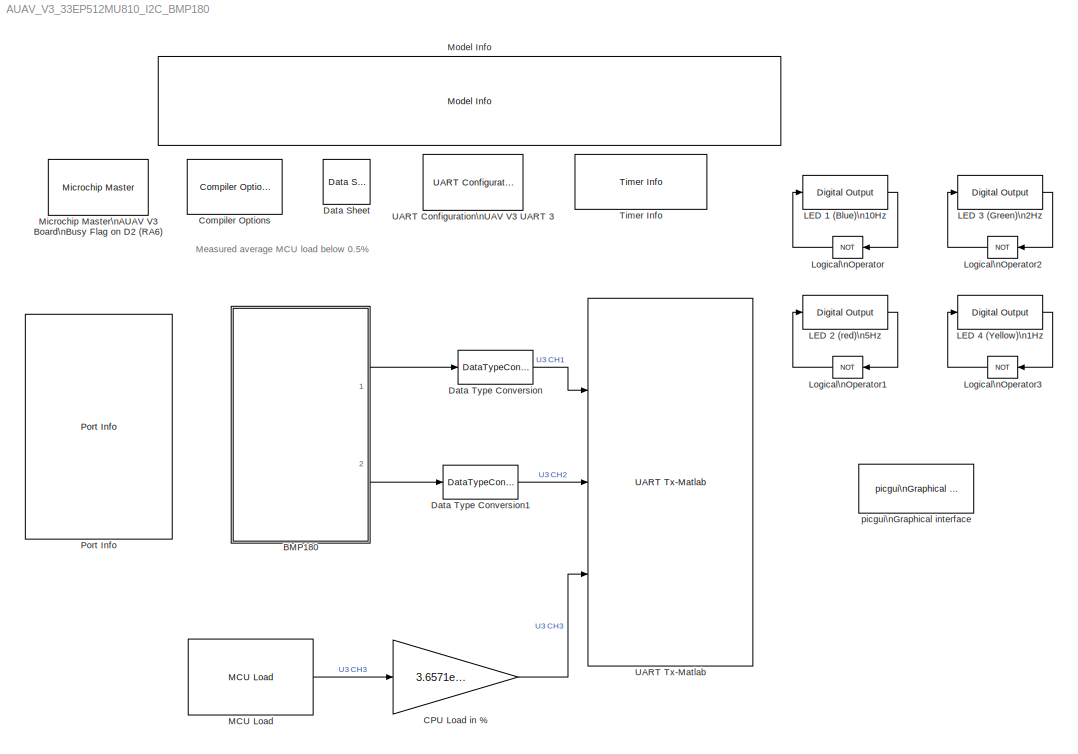
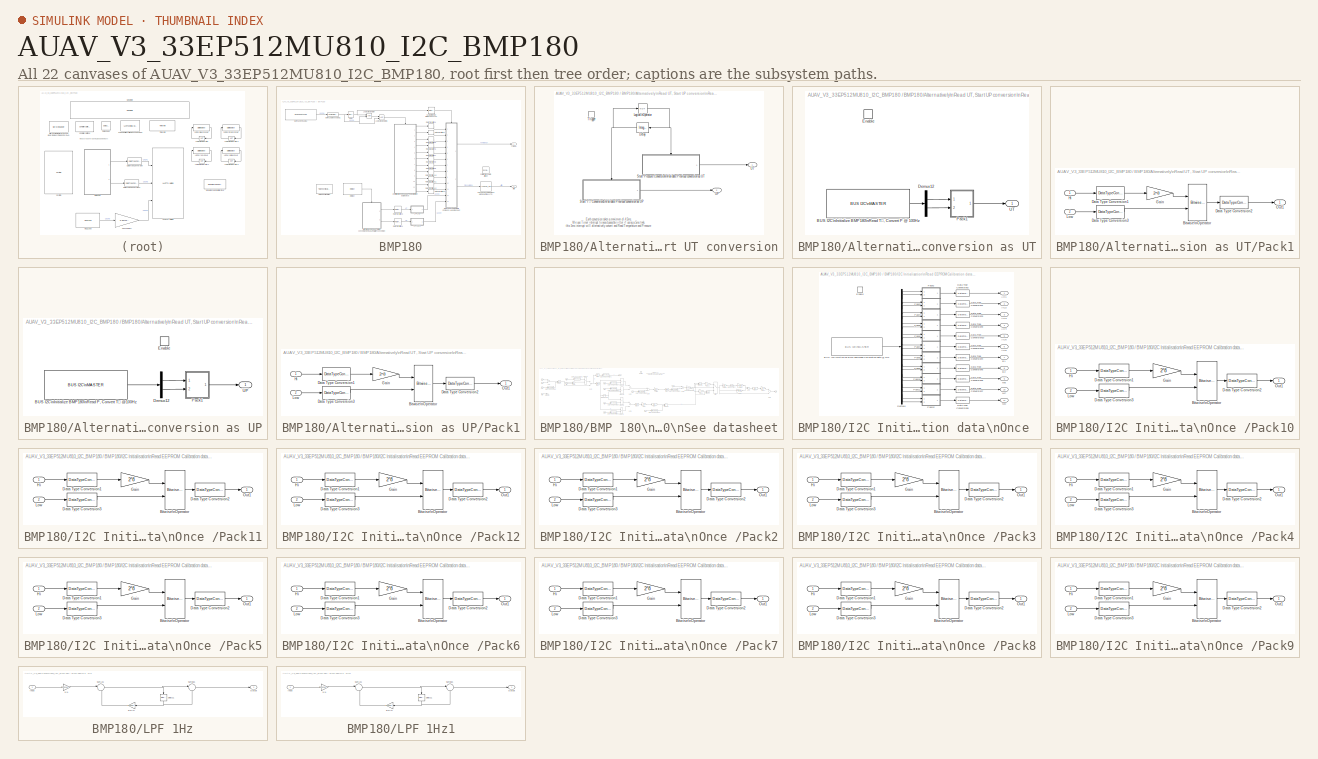
[diagram: thumbnail index - all 22 canvases of the model, root first then tree order]
MODEL AUAV_V3_33EP512MU810_I2C_BMP180
KIND model
BLOCK [SubSystem] BMP180
  FunctionWithSeparateData = off
  MaskHideContents = off
  MinAlgLoopOccurrences = off
  Opaque = off
  Ports = [0, 2]
  PropExecContextOutsideSubsystem = off
  RTWSystemCode = Auto
  RequestExecContextInheritance = off
  SID = 1430
BLOCK [Lookup_n-D] BMP180/1-D LookupTable\nPressure (Pa) to Altitude (m)\nValidate from 110776 to 35000 Pa \nequiv to -758m to 8117m
  BeginIndexSearchUsingPreviousIndexResult = on
  BreakpointsForDimension1 = [35000 37048 39096 41144 43192 45240 47288 49336 51384 53432 55480 57528 59576 61624 63672 65720 67768 69816 71864 73912 75960 78008 80056 82104 84152 86200 88248 90296 92344 94392 96440 98488 100536 102584 104632 106680 108728 110776]
  BreakpointsForDimension1DataTypeStr = int32
  ExtrapMethod = None - Clip
  FractionDataTypeStr = fixdt(1,16,14)
  IndexSearchMethod = Binary search
  IntermediateResultsDataTypeStr = fixdt(1,16,2)
  LockScale = on
  NumberOfTableDimensions = 1
  OutDataTypeStr = fixdt(1,16,2)
  Ports = [1, 1]
  RndMeth = Simplest
  SID = 1431
  Table = 1e3 * [ 8.117494150205507 7.723547426548278 7.346857777642530 6.985821956059110 6.639056725870316 6.305359823230530 5.983679274947499 5.673089005379611 5.372769238251574 5.081990599430406 4.800101108235001 4.526515446307385 4.260706039244585 4.002195593612567 3.750550811844361 3.505377067577800 3.266313869594596 3.033030977485221 2.805225059205164 2.582616801774246 2.364948402941722 2.151981384755...<+297ch>
  TableDataTypeStr = fixdt(1,16,2)
  UseLastTableValue = on
BLOCK [Outport] BMP180/Alt (m)
  IconDisplay = Port number
  Port = 2
  SID = 1695
BLOCK [SubSystem] BMP180/Alternatively\nRead UT, Start UP conversion\nRead UP, Start UT conversion
  FunctionWithSeparateData = off
  MaskHideContents = off
  MinAlgLoopOccurrences = off
  Opaque = off
  Ports = [0, 2, 0, 1]
  PropExecContextOutsideSubsystem = off
  RTWSystemCode = Auto
  RequestExecContextInheritance = off
  SID = 1432
BLOCK [Reference] BMP180/Alternatively\nRead UT, Start UP conversion\nRead UP, Start UT conversion/Delay  REF=simulink/Discrete/Integer Delay
  NumDelays = 1
  Ports = [1, 1]
  SID = 1434
  SourceBlock = simulink/Discrete/Integer Delay
  SourceType = Integer Delay
  samptime = -1
  vinit = 0
BLOCK [Logic] BMP180/Alternatively\nRead UT, Start UP conversion\nRead UP, Start UT conversion/Logical\nOperator
  AllPortsSameDT = off
  Operator = NOT
  OutDataTypeMode = boolean
  OutDataTypeStr = boolean
  Ports = [1, 1]
  SID = 1435
BLOCK [SubSystem] BMP180/Alternatively\nRead UT, Start UP conversion\nRead UP, Start UT conversion/Start Pressure Conversion\nValidate Previous conversion as UT
  FunctionWithSeparateData = off
  MaskHideContents = off
  MinAlgLoopOccurrences = off
  Opaque = off
  Ports = [0, 1, 1]
  PropExecContextOutsideSubsystem = off
  RTWSystemCode = Auto
  RequestExecContextInheritance = off
  SID = 1436
BLOCK [Reference] BMP180/Alternatively\nRead UT, Start UP conversion\nRead UP, Start UT conversion/Start Pressure Conversion\nValidate Previous conversion as UT/BUS I2C\nInitialize BMP180\nRead T°, Convert P @ 100Hz  REF=MCHP_Blockset/BUS I2C/BUS I2C\nMASTER
  BlockingMode = off
  I2CRef = 2
  I2C_IntPriority = 5
  I2Csequence_num = [BFF0000000000000 40E0400000000000 41186A0000000000 4118666E3C87173F]$4070000000000000$[3FF0000000000000 40E0200000000000 40F86A0000000000 40F866E066594CA2]$[4040000000000000 0000000000000000 0000000000000000 405DC00000000000]$[4050000000000000 3FF0000000000000 0000000000000000 406EC00000000000]$[4008000000000000 40E0000000000000 40F86A0000000000 410065D9C7810E65]$[4060000000000000 400000000000000...<+369ch>
  I2Csequence_txt = Initial-Configuration$     ---     $Start$Write Address:{[0x77]}    % BMP180 Address$Write Data (x1)  Write:{[0xF6]}  $Re-Start    % Re-Start when not followed with either Read or Write action rethrow Address$Read Data (x2)  Read:{adc out}    % Read converted value$Stop$Start$Write Address:{[0x77]}    % BMP180 Address$Write Data (x1)  Write:{[0xF4 0x34]}      % Start T° Conversion$Stop
  InitialConfigurationNum = 0
  MCHP_MASTERLINK = AUAV_V3_33EP512MU810_I2C_BMP180/Microchip Master\nAUAV V3 Board\nBusy Flag on D2 (RA6)
  MCHP_PORT = {I2C 2 Clock}{SCL2}13:0:F5;{I2C 2 SDA}{SDA2}13:0:F4;
  ORDERING = 0
  PIN_SCL_TXT = F5 / Pin[32]
  PIN_SDA_TXT = F4 / Pin[31]
  Ports = [0, 1]
  SID = 1438
  S_INPUT = [5  5]
  S_INPUT_Size = [2  2]
  S_OUTPUT = [5]
  S_OUTPUT_Size = [4]
  SampleTime = -1
  SequenceCompleted = off
  SourceBlock = MCHP_Blockset/BUS I2C/BUS I2C\nMASTER
  SourceType = I2C Driver
BLOCK [Demux] BMP180/Alternatively\nRead UT, Start UP conversion\nRead UP, Start UT conversion/Start Pressure Conversion\nValidate Previous conversion as UT/Demux12
  DisplayOption = bar
  Outputs = 2
  Ports = [1, 2]
  SID = 1439
BLOCK [EnablePort] BMP180/Alternatively\nRead UT, Start UP conversion\nRead UP, Start UT conversion/Start Pressure Conversion\nValidate Previous conversion as UT/Enable
  Ports = []
  SID = 1437
BLOCK [SubSystem] BMP180/Alternatively\nRead UT, Start UP conversion\nRead UP, Start UT conversion/Start Pressure Conversion\nValidate Previous conversion as UT/Pack1
  FunctionWithSeparateData = off
  MaskHideContents = off
  MinAlgLoopOccurrences = off
  Opaque = off
  Ports = [2, 1]
  PropExecContextOutsideSubsystem = off
  RTWSystemCode = Auto
  RequestExecContextInheritance = off
  SID = 1440
BLOCK [Reference] BMP180/Alternatively\nRead UT, Start UP conversion\nRead UP, Start UT conversion/Start Pressure Conversion\nValidate Previous conversion as UT/Pack1/Bitwise\nOperator  REF=simulink/Logic and Bit\nOperations/Bitwise\nOperator
  BitMask = bin2dec('11011001')
  BitMaskRealWorld = Stored Integer
  NumInputPorts = 2
  Ports = [2, 1]
  SID = 1443
  SourceBlock = simulink/Logic and Bit\nOperations/Bitwise\nOperator
  SourceType = Bitwise Operator
  UseBitMask = off
  logicop = OR
BLOCK [DataTypeConversion] BMP180/Alternatively\nRead UT, Start UP conversion\nRead UP, Start UT conversion/Start Pressure Conversion\nValidate Previous conversion as UT/Pack1/Data Type Conversion1
  ConvertRealWorld = Stored Integer (SI)
  OutDataTypeMode = uint16
  OutDataTypeStr = uint16
  RndMeth = Floor
  SID = 1444
  SaturateOnIntegerOverflow = off
BLOCK [DataTypeConversion] BMP180/Alternatively\nRead UT, Start UP conversion\nRead UP, Start UT conversion/Start Pressure Conversion\nValidate Previous conversion as UT/Pack1/Data Type Conversion2
  ConvertRealWorld = Stored Integer (SI)
  OutDataTypeMode = uint16
  OutDataTypeStr = uint16
  RndMeth = Floor
  SID = 1445
  SaturateOnIntegerOverflow = off
BLOCK [DataTypeConversion] BMP180/Alternatively\nRead UT, Start UP conversion\nRead UP, Start UT conversion/Start Pressure Conversion\nValidate Previous conversion as UT/Pack1/Data Type Conversion3
  ConvertRealWorld = Stored Integer (SI)
  OutDataTypeMode = uint16
  OutDataTypeStr = uint16
  RndMeth = Floor
  SID = 1446
  SaturateOnIntegerOverflow = off
BLOCK [Gain] BMP180/Alternatively\nRead UT, Start UP conversion\nRead UP, Start UT conversion/Start Pressure Conversion\nValidate Previous conversion as UT/Pack1/Gain
  Gain = 2^8
  ParamDataTypeStr = Inherit: Inherit via internal rule
  ParameterDataTypeMode = Inherit via internal rule
  SID = 1447
  SaturateOnIntegerOverflow = off
BLOCK [Inport] BMP180/Alternatively\nRead UT, Start UP conversion\nRead UP, Start UT conversion/Start Pressure Conversion\nValidate Previous conversion as UT/Pack1/Hi
  IconDisplay = Port number
  SID = 1441
BLOCK [Inport] BMP180/Alternatively\nRead UT, Start UP conversion\nRead UP, Start UT conversion/Start Pressure Conversion\nValidate Previous conversion as UT/Pack1/Low
  IconDisplay = Port number
  Port = 2
  SID = 1442
BLOCK [Outport] BMP180/Alternatively\nRead UT, Start UP conversion\nRead UP, Start UT conversion/Start Pressure Conversion\nValidate Previous conversion as UT/Pack1/Out1
  IconDisplay = Port number
  SID = 1448
BLOCK [Outport] BMP180/Alternatively\nRead UT, Start UP conversion\nRead UP, Start UT conversion/Start Pressure Conversion\nValidate Previous conversion as UT/UT
  IconDisplay = Port number
  SID = 1449
BLOCK [SubSystem] BMP180/Alternatively\nRead UT, Start UP conversion\nRead UP, Start UT conversion/Start T° Conversion1\nValidate Previous conversion as UP
  FunctionWithSeparateData = off
  MaskHideContents = off
  MinAlgLoopOccurrences = off
  Opaque = off
  Ports = [0, 1, 1]
  PropExecContextOutsideSubsystem = off
  RTWSystemCode = Auto
  RequestExecContextInheritance = off
  SID = 1450
BLOCK [Reference] BMP180/Alternatively\nRead UT, Start UP conversion\nRead UP, Start UT conversion/Start T° Conversion1\nValidate Previous conversion as UP/BUS I2C\nInitialize BMP180\nRead P, Convert T° @100Hz  REF=MCHP_Blockset/BUS I2C/BUS I2C\nMASTER
  BlockingMode = off
  I2CRef = 2
  I2C_IntPriority = 5
  I2Csequence_num = [BFF0000000000000 40E0400000000000 41186A0000000000 4118666E3C87173F]$4070000000000000$[3FF0000000000000 40E0200000000000 40F86A0000000000 40F866E066594CA2]$[4040000000000000 0000000000000000 0000000000000000 405DC00000000000]$[4050000000000000 3FF0000000000000 0000000000000000 406EC00000000000]$[4008000000000000 40E0000000000000 40F86A0000000000 410065D9C7810E65]$[4060000000000000 400000000000000...<+369ch>
  I2Csequence_txt = Initial-Configuration$     ---     $Start$Write Address:{[0x77]}    % BMP180 Address$Write Data (x1)  Write:{[0xF6]}  $Re-Start    % Re-Start when not followed with either Read or Write action rethrow Address$Read Data (x2)  Read:{adc out}    % Read converted value$Stop$Start$Write Address:{[0x77]}    % BMP180 Address$Write Data (x1)  Write:{[0xF4 0x2E]}      % Start T° Conversion$Stop
  InitialConfigurationNum = 0
  MCHP_MASTERLINK = AUAV_V3_33EP512MU810_I2C_BMP180/Microchip Master\nAUAV V3 Board\nBusy Flag on D2 (RA6)
  MCHP_PORT = {I2C 2 Clock}{SCL2}13:0:F5;{I2C 2 SDA}{SDA2}13:0:F4;
  ORDERING = 0
  PIN_SCL_TXT = F5 / Pin[32]
  PIN_SDA_TXT = F4 / Pin[31]
  Ports = [0, 1]
  SID = 1452
  S_INPUT = [5  5]
  S_INPUT_Size = [2  2]
  S_OUTPUT = [5]
  S_OUTPUT_Size = [4]
  SampleTime = -1
  SequenceCompleted = off
  SourceBlock = MCHP_Blockset/BUS I2C/BUS I2C\nMASTER
  SourceType = I2C Driver
BLOCK [Demux] BMP180/Alternatively\nRead UT, Start UP conversion\nRead UP, Start UT conversion/Start T° Conversion1\nValidate Previous conversion as UP/Demux12
  DisplayOption = bar
  Outputs = 2
  Ports = [1, 2]
  SID = 1453
BLOCK [EnablePort] BMP180/Alternatively\nRead UT, Start UP conversion\nRead UP, Start UT conversion/Start T° Conversion1\nValidate Previous conversion as UP/Enable
  Ports = []
  SID = 1451
BLOCK [SubSystem] BMP180/Alternatively\nRead UT, Start UP conversion\nRead UP, Start UT conversion/Start T° Conversion1\nValidate Previous conversion as UP/Pack1
  FunctionWithSeparateData = off
  MaskHideContents = off
  MinAlgLoopOccurrences = off
  Opaque = off
  Ports = [2, 1]
  PropExecContextOutsideSubsystem = off
  RTWSystemCode = Auto
  RequestExecContextInheritance = off
  SID = 1454
BLOCK [Reference] BMP180/Alternatively\nRead UT, Start UP conversion\nRead UP, Start UT conversion/Start T° Conversion1\nValidate Previous conversion as UP/Pack1/Bitwise\nOperator  REF=simulink/Logic and Bit\nOperations/Bitwise\nOperator
  BitMask = bin2dec('11011001')
  BitMaskRealWorld = Stored Integer
  NumInputPorts = 2
  Ports = [2, 1]
  SID = 1457
  SourceBlock = simulink/Logic and Bit\nOperations/Bitwise\nOperator
  SourceType = Bitwise Operator
  UseBitMask = off
  logicop = OR
BLOCK [DataTypeConversion] BMP180/Alternatively\nRead UT, Start UP conversion\nRead UP, Start UT conversion/Start T° Conversion1\nValidate Previous conversion as UP/Pack1/Data Type Conversion1
  ConvertRealWorld = Stored Integer (SI)
  OutDataTypeMode = uint16
  OutDataTypeStr = uint16
  RndMeth = Floor
  SID = 1458
  SaturateOnIntegerOverflow = off
BLOCK [DataTypeConversion] BMP180/Alternatively\nRead UT, Start UP conversion\nRead UP, Start UT conversion/Start T° Conversion1\nValidate Previous conversion as UP/Pack1/Data Type Conversion2
  ConvertRealWorld = Stored Integer (SI)
  OutDataTypeMode = uint16
  OutDataTypeStr = uint16
  RndMeth = Floor
  SID = 1459
  SaturateOnIntegerOverflow = off
BLOCK [DataTypeConversion] BMP180/Alternatively\nRead UT, Start UP conversion\nRead UP, Start UT conversion/Start T° Conversion1\nValidate Previous conversion as UP/Pack1/Data Type Conversion3
  ConvertRealWorld = Stored Integer (SI)
  OutDataTypeMode = uint16
  OutDataTypeStr = uint16
  RndMeth = Floor
  SID = 1460
  SaturateOnIntegerOverflow = off
BLOCK [Gain] BMP180/Alternatively\nRead UT, Start UP conversion\nRead UP, Start UT conversion/Start T° Conversion1\nValidate Previous conversion as UP/Pack1/Gain
  Gain = 2^8
  ParamDataTypeStr = Inherit: Inherit via internal rule
  ParameterDataTypeMode = Inherit via internal rule
  SID = 1461
  SaturateOnIntegerOverflow = off
BLOCK [Inport] BMP180/Alternatively\nRead UT, Start UP conversion\nRead UP, Start UT conversion/Start T° Conversion1\nValidate Previous conversion as UP/Pack1/Hi
  IconDisplay = Port number
  SID = 1455
BLOCK [Inport] BMP180/Alternatively\nRead UT, Start UP conversion\nRead UP, Start UT conversion/Start T° Conversion1\nValidate Previous conversion as UP/Pack1/Low
  IconDisplay = Port number
  Port = 2
  SID = 1456
BLOCK [Outport] BMP180/Alternatively\nRead UT, Start UP conversion\nRead UP, Start UT conversion/Start T° Conversion1\nValidate Previous conversion as UP/Pack1/Out1
  IconDisplay = Port number
  SID = 1462
BLOCK [Outport] BMP180/Alternatively\nRead UT, Start UP conversion\nRead UP, Start UT conversion/Start T° Conversion1\nValidate Previous conversion as UP/UP
  IconDisplay = Port number
  SID = 1463
BLOCK [TriggerPort] BMP180/Alternatively\nRead UT, Start UP conversion\nRead UP, Start UT conversion/Trigger
  PortDimensions = 1
  Ports = []
  SID = 1433
  StatesWhenEnabling = held
  TriggerType = function-call
BLOCK [Outport] BMP180/Alternatively\nRead UT, Start UP conversion\nRead UP, Start UT conversion/UP
  IconDisplay = Port number
  Port = 2
  SID = 1465
BLOCK [Outport] BMP180/Alternatively\nRead UT, Start UP conversion\nRead UP, Start UT conversion/UT
  IconDisplay = Port number
  SID = 1464
BLOCK [Reference] BMP180/BMP 180 ID\n0x55 (85)1  REF=simulink/Logic and Bit\nOperations/Compare\nTo Constant
  FunctionWithSeparateData = off
  LogicOutDataTypeMode = boolean
  Ports = [1, 1]
  RTWMemSecDataConstants = Inherit from model
  RTWMemSecDataInternal = Inherit from model
  RTWMemSecDataParameters = Inherit from model
  RTWMemSecFuncExecute = Inherit from model
  RTWMemSecFuncInitTerm = Inherit from model
  SID = 1530
  ShowPortLabels = FromPortIcon
  SourceBlock = simulink/Logic and Bit\nOperations/Compare\nTo Constant
  SourceType = Compare To Constant
  SystemSampleTime = -1
  ZeroCross = on
  const = hex2dec('55')
  relop = ==
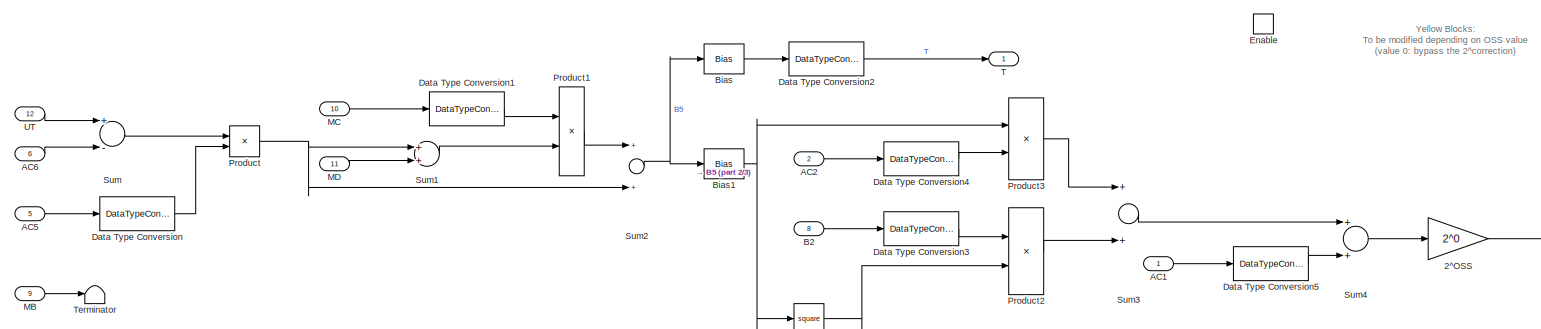
[diagram: BMP180/BMP 180\nTemperature Compensation\nOSS must be 0\nSee datasheet - part 1/3, top left region]
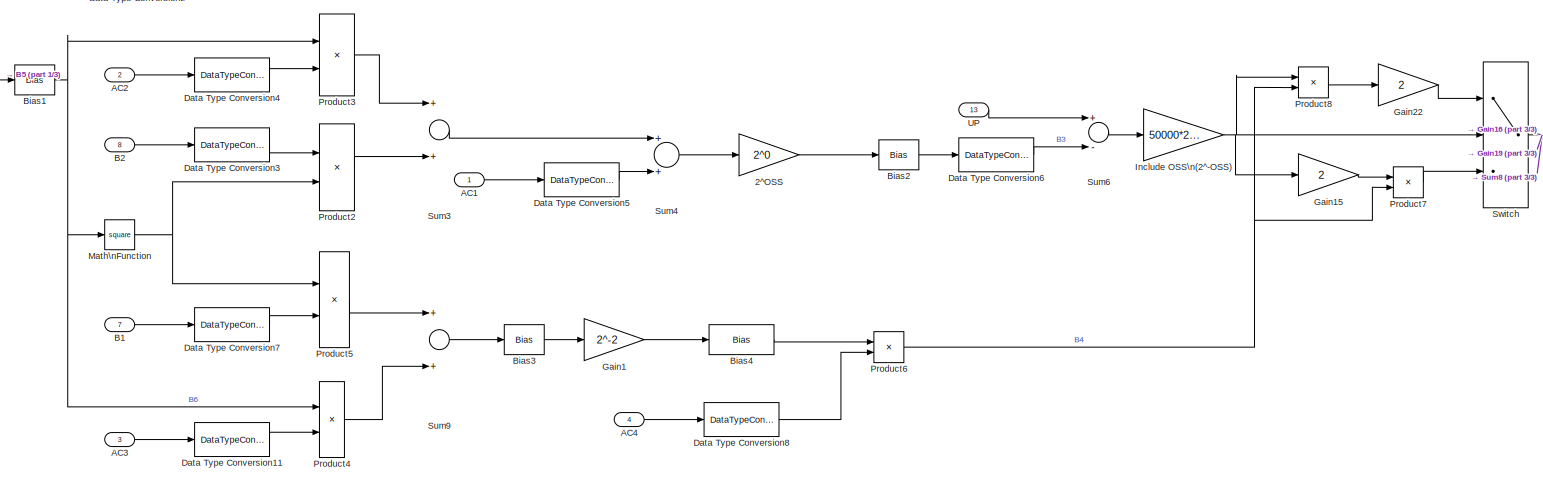
[diagram: BMP180/BMP 180\nTemperature Compensation\nOSS must be 0\nSee datasheet - part 2/3, center side, full height]
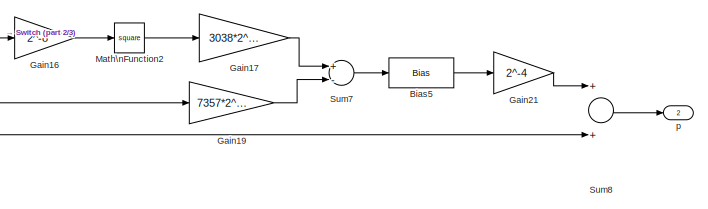
[diagram: BMP180/BMP 180\nTemperature Compensation\nOSS must be 0\nSee datasheet - part 3/3, middle right region]
BLOCK [SubSystem] BMP180/BMP 180\nTemperature Compensation\nOSS must be 0\nSee datasheet
  FunctionWithSeparateData = off
  MaskHideContents = off
  MinAlgLoopOccurrences = off
  Opaque = off
  Ports = [13, 2, 1]
  PropExecContextOutsideSubsystem = off
  RTWSystemCode = Auto
  RequestExecContextInheritance = off
  SID = 1466
BLOCK [Gain] BMP180/BMP 180\nTemperature Compensation\nOSS must be 0\nSee datasheet/2^OSS
  Gain = 2^0
  LockScale = on
  ParamDataTypeStr = Inherit: Inherit via internal rule
  ParameterDataTypeMode = Inherit via internal rule
  SID = 1481
  SaturateOnIntegerOverflow = off
BLOCK [Inport] BMP180/BMP 180\nTemperature Compensation\nOSS must be 0\nSee datasheet/AC1
  IconDisplay = Port number
  SID = 1467
BLOCK [Inport] BMP180/BMP 180\nTemperature Compensation\nOSS must be 0\nSee datasheet/AC2
  IconDisplay = Port number
  Port = 2
  SID = 1468
BLOCK [Inport] BMP180/BMP 180\nTemperature Compensation\nOSS must be 0\nSee datasheet/AC3
  IconDisplay = Port number
  Port = 3
  SID = 1469
BLOCK [Inport] BMP180/BMP 180\nTemperature Compensation\nOSS must be 0\nSee datasheet/AC4
  IconDisplay = Port number
  Port = 4
  SID = 1470
BLOCK [Inport] BMP180/BMP 180\nTemperature Compensation\nOSS must be 0\nSee datasheet/AC5
  IconDisplay = Port number
  Port = 5
  SID = 1471
BLOCK [Inport] BMP180/BMP 180\nTemperature Compensation\nOSS must be 0\nSee datasheet/AC6
  IconDisplay = Port number
  Port = 6
  SID = 1472
BLOCK [Inport] BMP180/BMP 180\nTemperature Compensation\nOSS must be 0\nSee datasheet/B1
  IconDisplay = Port number
  Port = 7
  SID = 1473
BLOCK [Inport] BMP180/BMP 180\nTemperature Compensation\nOSS must be 0\nSee datasheet/B2
  IconDisplay = Port number
  Port = 8
  SID = 1474
BLOCK [Bias] BMP180/BMP 180\nTemperature Compensation\nOSS must be 0\nSee datasheet/Bias
  Bias = 8
  SID = 1482
  SaturateOnIntegerOverflow = off
BLOCK [Bias] BMP180/BMP 180\nTemperature Compensation\nOSS must be 0\nSee datasheet/Bias1
  Bias = -4000
  SID = 1483
  SaturateOnIntegerOverflow = off
BLOCK [Bias] BMP180/BMP 180\nTemperature Compensation\nOSS must be 0\nSee datasheet/Bias2
  Bias = 2
  SID = 1484
  SaturateOnIntegerOverflow = off
BLOCK [Bias] BMP180/BMP 180\nTemperature Compensation\nOSS must be 0\nSee datasheet/Bias3
  Bias = 2
  SID = 1485
  SaturateOnIntegerOverflow = off
BLOCK [Bias] BMP180/BMP 180\nTemperature Compensation\nOSS must be 0\nSee datasheet/Bias4
  Bias = 32768
  SID = 1486
  SaturateOnIntegerOverflow = off
BLOCK [Bias] BMP180/BMP 180\nTemperature Compensation\nOSS must be 0\nSee datasheet/Bias5
  Bias = 3791
  SID = 1487
  SaturateOnIntegerOverflow = off
BLOCK [DataTypeConversion] BMP180/BMP 180\nTemperature Compensation\nOSS must be 0\nSee datasheet/Data Type Conversion
  ConvertRealWorld = Stored Integer (SI)
  OutDataType = fixdt(0,16,15)
  OutDataTypeMode = Specify via dialog
  OutDataTypeStr = fixdt(0,16,15)
  RndMeth = Floor
  SID = 1488
  SaturateOnIntegerOverflow = off
BLOCK [DataTypeConversion] BMP180/BMP 180\nTemperature Compensation\nOSS must be 0\nSee datasheet/Data Type Conversion1
  ConvertRealWorld = Stored Integer (SI)
  OutDataType = fixdt(1,16,-11)
  OutDataTypeMode = Specify via dialog
  OutDataTypeStr = fixdt(1,16,-11)
  RndMeth = Floor
  SID = 1489
  SaturateOnIntegerOverflow = off
BLOCK [DataTypeConversion] BMP180/BMP 180\nTemperature Compensation\nOSS must be 0\nSee datasheet/Data Type Conversion11
  ConvertRealWorld = Stored Integer (SI)
  OutDataType = fixdt(1,16,13)
  OutDataTypeMode = Specify via dialog
  OutDataTypeStr = fixdt(1,16,13)
  RndMeth = Floor
  SID = 1490
  SaturateOnIntegerOverflow = off
BLOCK [DataTypeConversion] BMP180/BMP 180\nTemperature Compensation\nOSS must be 0\nSee datasheet/Data Type Conversion2
  ConvertRealWorld = Stored Integer (SI)
  OutDataType = fixdt(1,16,0.1*2^-4,0)
  OutDataTypeMode = Specify via dialog
  OutDataTypeStr = fixdt(1,16,0.1*2^-4,0)
  RndMeth = Floor
  SID = 1491
  SaturateOnIntegerOverflow = off
BLOCK [DataTypeConversion] BMP180/BMP 180\nTemperature Compensation\nOSS must be 0\nSee datasheet/Data Type Conversion3
  ConvertRealWorld = Stored Integer (SI)
  OutDataType = fixdt(1,16,23)
  OutDataTypeMode = Specify via dialog
  OutDataTypeStr = fixdt(1,16,23)
  RndMeth = Floor
  SID = 1492
  SaturateOnIntegerOverflow = off
BLOCK [DataTypeConversion] BMP180/BMP 180\nTemperature Compensation\nOSS must be 0\nSee datasheet/Data Type Conversion4
  ConvertRealWorld = Stored Integer (SI)
  OutDataType = fixdt(1,16,11)
  OutDataTypeMode = Specify via dialog
  OutDataTypeStr = fixdt(1,16,11)
  RndMeth = Floor
  SID = 1493
  SaturateOnIntegerOverflow = off
BLOCK [DataTypeConversion] BMP180/BMP 180\nTemperature Compensation\nOSS must be 0\nSee datasheet/Data Type Conversion5
  ConvertRealWorld = Stored Integer (SI)
  OutDataType = fixdt(1,16,-2)
  OutDataTypeMode = Specify via dialog
  OutDataTypeStr = fixdt(1,16,-2)
  RndMeth = Floor
  SID = 1494
  SaturateOnIntegerOverflow = off
BLOCK [DataTypeConversion] BMP180/BMP 180\nTemperature Compensation\nOSS must be 0\nSee datasheet/Data Type Conversion6
  ConvertRealWorld = Stored Integer (SI)
  OutDataType = fixdt(1,32,2)
  OutDataTypeMode = Specify via dialog
  OutDataTypeStr = fixdt(1,32,2)
  RndMeth = Floor
  SID = 1495
  SaturateOnIntegerOverflow = off
BLOCK [DataTypeConversion] BMP180/BMP 180\nTemperature Compensation\nOSS must be 0\nSee datasheet/Data Type Conversion7
  ConvertRealWorld = Stored Integer (SI)
  OutDataType = fixdt(1,16,12+16)
  OutDataTypeMode = Specify via dialog
  OutDataTypeStr = fixdt(1,16,12+16)
  RndMeth = Floor
  SID = 1496
  SaturateOnIntegerOverflow = off
BLOCK [DataTypeConversion] BMP180/BMP 180\nTemperature Compensation\nOSS must be 0\nSee datasheet/Data Type Conversion8
  ConvertRealWorld = Stored Integer (SI)
  OutDataType = fixdt(0,16,15)
  OutDataTypeMode = Specify via dialog
  OutDataTypeStr = fixdt(0,16,15)
  RndMeth = Floor
  SID = 1497
  SaturateOnIntegerOverflow = off
BLOCK [EnablePort] BMP180/BMP 180\nTemperature Compensation\nOSS must be 0\nSee datasheet/Enable
  Ports = []
  SID = 1480
BLOCK [Gain] BMP180/BMP 180\nTemperature Compensation\nOSS must be 0\nSee datasheet/Gain1
  Gain = 2^-2
  OutDataTypeMode = int32
  OutDataTypeStr = int32
  ParamDataTypeStr = Inherit: Inherit via internal rule
  ParameterDataTypeMode = Inherit via internal rule
  SID = 1498
  SaturateOnIntegerOverflow = off
BLOCK [Gain] BMP180/BMP 180\nTemperature Compensation\nOSS must be 0\nSee datasheet/Gain15
  Gain = 2
  OutDataTypeMode = uint32
  OutDataTypeStr = uint32
  ParamDataTypeStr = Inherit: Inherit via internal rule
  ParameterDataTypeMode = Inherit via internal rule
  RndMeth = Round
  SID = 1499
  SaturateOnIntegerOverflow = off
BLOCK [Gain] BMP180/BMP 180\nTemperature Compensation\nOSS must be 0\nSee datasheet/Gain16
  Gain = 2^-8
  OutDataTypeMode = uint32
  OutDataTypeStr = uint32
  ParamDataTypeStr = Inherit: Inherit via internal rule
  ParameterDataTypeMode = Inherit via internal rule
  RndMeth = Round
  SID = 1500
  SaturateOnIntegerOverflow = off
BLOCK [Gain] BMP180/BMP 180\nTemperature Compensation\nOSS must be 0\nSee datasheet/Gain17
  Gain = 3038*2^-16
  OutDataTypeMode = uint32
  OutDataTypeStr = uint32
  ParamDataTypeStr = uint16
  ParameterDataTypeMode = uint16
  SID = 1501
  SaturateOnIntegerOverflow = off
BLOCK [Gain] BMP180/BMP 180\nTemperature Compensation\nOSS must be 0\nSee datasheet/Gain19
  Gain = 7357*2^-16
  OutDataTypeMode = uint32
  OutDataTypeStr = uint32
  ParamDataTypeStr = fixdt(0,16)
  ParameterDataType = fixdt(0,16)
  ParameterDataTypeMode = Specify via dialog
  ParameterScalingMode = Best Precision: Matrix-wise
  SID = 1502
  SaturateOnIntegerOverflow = off
BLOCK [Gain] BMP180/BMP 180\nTemperature Compensation\nOSS must be 0\nSee datasheet/Gain21
  Gain = 2^-4
  ParamDataTypeStr = Inherit: Inherit via internal rule
  ParameterDataTypeMode = Inherit via internal rule
  SID = 1503
  SaturateOnIntegerOverflow = off
BLOCK [Gain] BMP180/BMP 180\nTemperature Compensation\nOSS must be 0\nSee datasheet/Gain22
  Gain = 2
  ParamDataTypeStr = Inherit: Inherit via internal rule
  ParameterDataTypeMode = Inherit via internal rule
  SID = 1504
  SaturateOnIntegerOverflow = off
BLOCK [Gain] BMP180/BMP 180\nTemperature Compensation\nOSS must be 0\nSee datasheet/Include OSS\n(2^-OSS)
  Gain = 50000*2^-0
  ParamDataTypeStr = Inherit: Inherit via internal rule
  ParameterDataTypeMode = Inherit via internal rule
  RndMeth = Round
  SID = 1505
  SaturateOnIntegerOverflow = off
BLOCK [Inport] BMP180/BMP 180\nTemperature Compensation\nOSS must be 0\nSee datasheet/MB
  IconDisplay = Port number
  Port = 9
  SID = 1475
BLOCK [Inport] BMP180/BMP 180\nTemperature Compensation\nOSS must be 0\nSee datasheet/MC
  IconDisplay = Port number
  Port = 10
  SID = 1476
BLOCK [Inport] BMP180/BMP 180\nTemperature Compensation\nOSS must be 0\nSee datasheet/MD
  IconDisplay = Port number
  Port = 11
  SID = 1477
BLOCK [Math] BMP180/BMP 180\nTemperature Compensation\nOSS must be 0\nSee datasheet/Math\nFunction
  Operator = square
  OutDataTypeMode = Inherit via internal rule
  OutDataTypeStr = Inherit: Inherit via internal rule
  Ports = [1, 1]
  SID = 1506
BLOCK [Math] BMP180/BMP 180\nTemperature Compensation\nOSS must be 0\nSee datasheet/Math\nFunction2
  Operator = square
  OutDataTypeMode = uint32
  OutDataTypeStr = uint32
  Ports = [1, 1]
  SID = 1507
BLOCK [Product] BMP180/BMP 180\nTemperature Compensation\nOSS must be 0\nSee datasheet/Product
  InputSameDT = off
  Ports = [2, 1]
  RndMeth = Round
  SID = 1508
  SaturateOnIntegerOverflow = off
BLOCK [Product] BMP180/BMP 180\nTemperature Compensation\nOSS must be 0\nSee datasheet/Product1
  InputSameDT = off
  Inputs = */
  OutDataTypeMode = int16
  OutDataTypeStr = int16
  Ports = [2, 1]
  RndMeth = Round
  SID = 1509
  SaturateOnIntegerOverflow = off
BLOCK [Product] BMP180/BMP 180\nTemperature Compensation\nOSS must be 0\nSee datasheet/Product2
  InputSameDT = off
  OutDataTypeMode = int16
  OutDataTypeStr = int16
  Ports = [2, 1]
  RndMeth = Floor
  SID = 1510
  SaturateOnIntegerOverflow = off
BLOCK [Product] BMP180/BMP 180\nTemperature Compensation\nOSS must be 0\nSee datasheet/Product3
  InputSameDT = off
  Ports = [2, 1]
  RndMeth = Floor
  SID = 1511
  SaturateOnIntegerOverflow = off
BLOCK [Product] BMP180/BMP 180\nTemperature Compensation\nOSS must be 0\nSee datasheet/Product4
  InputSameDT = off
  OutDataTypeMode = int16
  OutDataTypeStr = int16
  Ports = [2, 1]
  RndMeth = Floor
  SID = 1512
  SaturateOnIntegerOverflow = off
BLOCK [Product] BMP180/BMP 180\nTemperature Compensation\nOSS must be 0\nSee datasheet/Product5
  InputSameDT = off
  OutDataTypeMode = int16
  OutDataTypeStr = int16
  Ports = [2, 1]
  RndMeth = Floor
  SID = 1513
  SaturateOnIntegerOverflow = off
BLOCK [Product] BMP180/BMP 180\nTemperature Compensation\nOSS must be 0\nSee datasheet/Product6
  InputSameDT = off
  OutDataTypeMode = uint32
  OutDataTypeStr = uint32
  Ports = [2, 1]
  RndMeth = Floor
  SID = 1514
  SaturateOnIntegerOverflow = off
BLOCK [Product] BMP180/BMP 180\nTemperature Compensation\nOSS must be 0\nSee datasheet/Product7
  InputSameDT = off
  Inputs = */
  OutDataTypeMode = Inherit via internal rule
  OutDataTypeStr = Inherit: Inherit via internal rule
  Ports = [2, 1]
  RndMeth = Round
  SID = 1515
  SaturateOnIntegerOverflow = off
BLOCK [Product] BMP180/BMP 180\nTemperature Compensation\nOSS must be 0\nSee datasheet/Product8
  InputSameDT = off
  Inputs = */
  OutDataTypeMode = uint32
  OutDataTypeStr = uint32
  Ports = [2, 1]
  RndMeth = Round
  SID = 1516
  SaturateOnIntegerOverflow = off
BLOCK [Sum] BMP180/BMP 180\nTemperature Compensation\nOSS must be 0\nSee datasheet/Sum
  InputSameDT = off
  Inputs = +-
  OutDataTypeMode = Inherit via internal rule
  OutDataTypeStr = Inherit: Inherit via internal rule
  Ports = [2, 1]
  RndMeth = Round
  SID = 1517
  SaturateOnIntegerOverflow = off
BLOCK [Sum] BMP180/BMP 180\nTemperature Compensation\nOSS must be 0\nSee datasheet/Sum1
  AccumDataTypeStr = Inherit: Same as first input
  InputSameDT = off
  Ports = [2, 1]
  RndMeth = Round
  SID = 1518
  SaturateOnIntegerOverflow = off
BLOCK [Sum] BMP180/BMP 180\nTemperature Compensation\nOSS must be 0\nSee datasheet/Sum2
  AccumDataTypeStr = int16
  InputSameDT = off
  OutDataTypeMode = int16
  OutDataTypeStr = int16
  Ports = [2, 1]
  RndMeth = Round
  SID = 1519
  SaturateOnIntegerOverflow = off
BLOCK [Sum] BMP180/BMP 180\nTemperature Compensation\nOSS must be 0\nSee datasheet/Sum3
  InputSameDT = off
  OutDataTypeMode = Inherit via internal rule
  OutDataTypeStr = Inherit: Inherit via internal rule
  Ports = [2, 1]
  SID = 1520
  SaturateOnIntegerOverflow = off
BLOCK [Sum] BMP180/BMP 180\nTemperature Compensation\nOSS must be 0\nSee datasheet/Sum4
  InputSameDT = off
  OutDataTypeMode = int32
  OutDataTypeStr = int32
  Ports = [2, 1]
  SID = 1521
  SaturateOnIntegerOverflow = off
BLOCK [Sum] BMP180/BMP 180\nTemperature Compensation\nOSS must be 0\nSee datasheet/Sum6
  AccumDataTypeStr = uint32
  InputSameDT = off
  Inputs = +-
  OutDataTypeMode = uint32
  OutDataTypeStr = uint32
  Ports = [2, 1]
  SID = 1522
  SaturateOnIntegerOverflow = off
BLOCK [Sum] BMP180/BMP 180\nTemperature Compensation\nOSS must be 0\nSee datasheet/Sum7
  AccumDataTypeStr = int32
  InputSameDT = off
  Inputs = +-
  OutDataTypeMode = int32
  OutDataTypeStr = int32
  Ports = [2, 1]
  SID = 1523
  SaturateOnIntegerOverflow = off
BLOCK [Sum] BMP180/BMP 180\nTemperature Compensation\nOSS must be 0\nSee datasheet/Sum8
  AccumDataTypeStr = int32
  InputSameDT = off
  OutDataTypeMode = Same as accumulator
  OutDataTypeStr = Inherit: Same as accumulator
  Ports = [2, 1]
  RndMeth = Round
  SID = 1524
  SaturateOnIntegerOverflow = off
BLOCK [Sum] BMP180/BMP 180\nTemperature Compensation\nOSS must be 0\nSee datasheet/Sum9
  InputSameDT = off
  OutDataTypeMode = Inherit via internal rule
  OutDataTypeStr = Inherit: Inherit via internal rule
  Ports = [2, 1]
  SID = 1525
  SaturateOnIntegerOverflow = off
BLOCK [Switch] BMP180/BMP 180\nTemperature Compensation\nOSS must be 0\nSee datasheet/Switch
  Criteria = u2 > Threshold
  InputSameDT = off
  SID = 1526
  SaturateOnIntegerOverflow = off
  Threshold = (2^31-1)
BLOCK [Outport] BMP180/BMP 180\nTemperature Compensation\nOSS must be 0\nSee datasheet/T
  IconDisplay = Port number
  SID = 1528
BLOCK [Terminator] BMP180/BMP 180\nTemperature Compensation\nOSS must be 0\nSee datasheet/Terminator
  SID = 1527
BLOCK [Inport] BMP180/BMP 180\nTemperature Compensation\nOSS must be 0\nSee datasheet/UP
  IconDisplay = Port number
  Port = 13
  SID = 1479
BLOCK [Inport] BMP180/BMP 180\nTemperature Compensation\nOSS must be 0\nSee datasheet/UT
  IconDisplay = Port number
  Port = 12
  SID = 1478
BLOCK [Outport] BMP180/BMP 180\nTemperature Compensation\nOSS must be 0\nSee datasheet/p
  IconDisplay = Port number
  Port = 2
  SID = 1529
BLOCK [Reference] BMP180/BMP-180\nRead ID1  REF=MCHP_Blockset/BUS I2C/BUS I2C\nMASTER
  BlockingMode = off
  I2CRef = 2
  I2C_IntPriority = 5
  I2Csequence_num = [BFF0000000000000 40E0400000000000 41186A0000000000 4118666E3C87173F]$[4070000000000000]$[3FF0000000000000 40E0200000000000 40F86A0000000000 40F866E066594CA2]$[4040000000000000 0000000000000000 0000000000000000 405DC00000000000]$[4050000000000000 3FF0000000000000 0000000000000000 406A000000000000]$[4008000000000000 40E0000000000000 40F86A0000000000 410065D9C7810E65]$[4060000000000000 3FF0000000000...<+74ch>
  I2Csequence_txt = Initial-Configuration$     ---     $Start$Write Address:{0x77}    % BMP180 Address$Write Data (x1)  Write:{[0xD0]}      % ID address$Re-Start    % Re-Start when not followed with either Read or Write action rethrow Address$Read Data (x1)  Read:{ID BMP180}$Stop
  InitialConfigurationNum = 0
  MCHP_MASTERLINK = AUAV_V3_33EP512MU810_I2C_BMP180/Microchip Master\nAUAV V3 Board\nBusy Flag on D2 (RA6)
  MCHP_PORT = {I2C 2 Clock}{SCL2}13:0:F5;{I2C 2 SDA}{SDA2}13:0:F4;
  ORDERING = 0
  PIN_SCL_TXT = F5 / Pin[32]
  PIN_SDA_TXT = F4 / Pin[31]
  Ports = [0, 1]
  SID = 1531
  S_INPUT = [5  5]
  S_INPUT_Size = [2  2]
  S_OUTPUT = [5]
  S_OUTPUT_Size = [4]
  SampleTime = 0.1
  SequenceCompleted = off
  SourceBlock = MCHP_Blockset/BUS I2C/BUS I2C\nMASTER
  SourceType = I2C Driver
BLOCK [Reference] BMP180/Delay  REF=simulink/Discrete/Integer Delay
  NumDelays = 2
  Ports = [1, 1]
  SID = 1533
  SourceBlock = simulink/Discrete/Integer Delay
  SourceType = Integer Delay
  samptime = -1
  vinit = 0
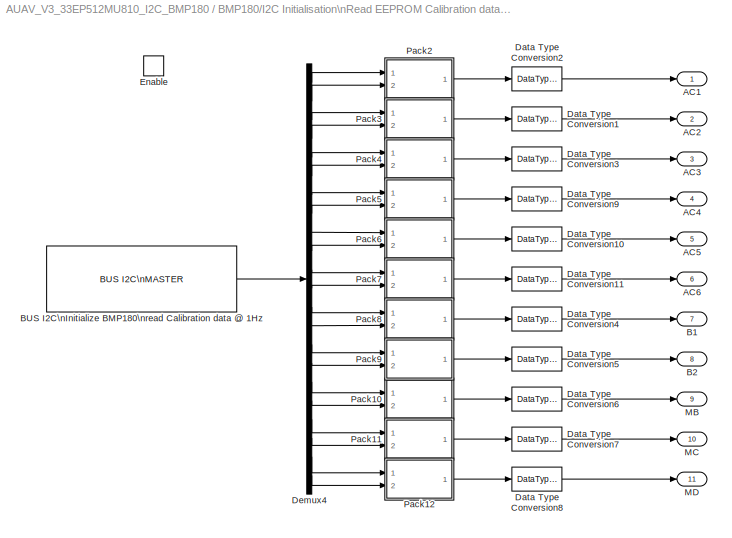
BLOCK [SubSystem] BMP180/I2C Initialisation\nRead EEPROM Calibration data\nOnce 
  FunctionWithSeparateData = off
  MaskHideContents = off
  MinAlgLoopOccurrences = off
  Opaque = off
  Ports = [0, 11, 1]
  PropExecContextOutsideSubsystem = off
  RTWSystemCode = Auto
  RequestExecContextInheritance = off
  SID = 1534
BLOCK [Outport] BMP180/I2C Initialisation\nRead EEPROM Calibration data\nOnce /AC1
  IconDisplay = Port number
  SID = 1648
BLOCK [Outport] BMP180/I2C Initialisation\nRead EEPROM Calibration data\nOnce /AC2
  IconDisplay = Port number
  Port = 2
  SID = 1649
BLOCK [Outport] BMP180/I2C Initialisation\nRead EEPROM Calibration data\nOnce /AC3
  IconDisplay = Port number
  Port = 3
  SID = 1650
BLOCK [Outport] BMP180/I2C Initialisation\nRead EEPROM Calibration data\nOnce /AC4
  IconDisplay = Port number
  Port = 4
  SID = 1651
BLOCK [Outport] BMP180/I2C Initialisation\nRead EEPROM Calibration data\nOnce /AC5
  IconDisplay = Port number
  Port = 5
  SID = 1652
BLOCK [Outport] BMP180/I2C Initialisation\nRead EEPROM Calibration data\nOnce /AC6
  IconDisplay = Port number
  Port = 6
  SID = 1653
BLOCK [Outport] BMP180/I2C Initialisation\nRead EEPROM Calibration data\nOnce /B1
  IconDisplay = Port number
  Port = 7
  SID = 1654
BLOCK [Outport] BMP180/I2C Initialisation\nRead EEPROM Calibration data\nOnce /B2
  IconDisplay = Port number
  Port = 8
  SID = 1655
BLOCK [Reference] BMP180/I2C Initialisation\nRead EEPROM Calibration data\nOnce /BUS I2C\nInitialize BMP180\nread Calibration data @ 1Hz  REF=MCHP_Blockset/BUS I2C/BUS I2C\nMASTER
  BlockingMode = off
  I2CRef = 2
  I2C_IntPriority = 5
  I2Csequence_num = [BFF0000000000000 40E0400000000000 41186A0000000000 4118666E3C87173F]$[4070000000000000]$[3FF0000000000000 40E0200000000000 40F86A0000000000 40F866E066594CA2]$[4040000000000000 0000000000000000 0000000000000000 405DC00000000000]$[4050000000000000 3FF0000000000000 0000000000000000 4065400000000000]$[4008000000000000 40E0000000000000 40F86A0000000000 410065D9C7810E65]$[4060000000000000 4036000000000...<+74ch>
  I2Csequence_txt = Initial-Configuration$     ---     $Start$Write Address:{[0x77]}    % BMP180 Address$Write Data (x1)  Write:{[0xAA ]}  $Re-Start    % Re-Start when not followed with either Read or Write action rethrow Address$Read Data (x22)  Read:{Out 9}$Stop
  InitialConfigurationNum = 0
  MCHP_MASTERLINK = AUAV_V3_33EP512MU810_I2C_BMP180/Microchip Master\nAUAV V3 Board\nBusy Flag on D2 (RA6)
  MCHP_PORT = {I2C 2 Clock}{SCL2}13:0:F5;{I2C 2 SDA}{SDA2}13:0:F4;
  ORDERING = 0
  PIN_SCL_TXT = F5 / Pin[32]
  PIN_SDA_TXT = F4 / Pin[31]
  Ports = [0, 1]
  SID = 1536
  S_INPUT = [5  5]
  S_INPUT_Size = [2  2]
  S_OUTPUT = [5]
  S_OUTPUT_Size = [4]
  SampleTime = 0.1
  SequenceCompleted = off
  SourceBlock = MCHP_Blockset/BUS I2C/BUS I2C\nMASTER
  SourceType = I2C Driver
BLOCK [DataTypeConversion] BMP180/I2C Initialisation\nRead EEPROM Calibration data\nOnce /Data Type Conversion1
  ConvertRealWorld = Stored Integer (SI)
  OutDataTypeMode = int16
  OutDataTypeStr = int16
  RndMeth = Floor
  SID = 1537
  SaturateOnIntegerOverflow = off
BLOCK [DataTypeConversion] BMP180/I2C Initialisation\nRead EEPROM Calibration data\nOnce /Data Type Conversion10
  ConvertRealWorld = Stored Integer (SI)
  LockScale = on
  OutDataTypeMode = uint16
  OutDataTypeStr = uint16
  RndMeth = Floor
  SID = 1538
  SaturateOnIntegerOverflow = off
BLOCK [DataTypeConversion] BMP180/I2C Initialisation\nRead EEPROM Calibration data\nOnce /Data Type Conversion11
  ConvertRealWorld = Stored Integer (SI)
  LockScale = on
  OutDataTypeMode = uint16
  OutDataTypeStr = uint16
  RndMeth = Floor
  SID = 1539
  SaturateOnIntegerOverflow = off
BLOCK [DataTypeConversion] BMP180/I2C Initialisation\nRead EEPROM Calibration data\nOnce /Data Type Conversion2
  ConvertRealWorld = Stored Integer (SI)
  OutDataTypeMode = int16
  OutDataTypeStr = int16
  RndMeth = Floor
  SID = 1540
  SaturateOnIntegerOverflow = off
BLOCK [DataTypeConversion] BMP180/I2C Initialisation\nRead EEPROM Calibration data\nOnce /Data Type Conversion3
  ConvertRealWorld = Stored Integer (SI)
  OutDataTypeMode = int16
  OutDataTypeStr = int16
  RndMeth = Floor
  SID = 1541
  SaturateOnIntegerOverflow = off
BLOCK [DataTypeConversion] BMP180/I2C Initialisation\nRead EEPROM Calibration data\nOnce /Data Type Conversion4
  ConvertRealWorld = Stored Integer (SI)
  OutDataTypeMode = int16
  OutDataTypeStr = int16
  RndMeth = Floor
  SID = 1542
  SaturateOnIntegerOverflow = off
BLOCK [DataTypeConversion] BMP180/I2C Initialisation\nRead EEPROM Calibration data\nOnce /Data Type Conversion5
  ConvertRealWorld = Stored Integer (SI)
  OutDataTypeMode = int16
  OutDataTypeStr = int16
  RndMeth = Floor
  SID = 1543
  SaturateOnIntegerOverflow = off
BLOCK [DataTypeConversion] BMP180/I2C Initialisation\nRead EEPROM Calibration data\nOnce /Data Type Conversion6
  ConvertRealWorld = Stored Integer (SI)
  OutDataTypeMode = int16
  OutDataTypeStr = int16
  RndMeth = Floor
  SID = 1544
  SaturateOnIntegerOverflow = off
BLOCK [DataTypeConversion] BMP180/I2C Initialisation\nRead EEPROM Calibration data\nOnce /Data Type Conversion7
  ConvertRealWorld = Stored Integer (SI)
  OutDataTypeMode = int16
  OutDataTypeStr = int16
  RndMeth = Floor
  SID = 1545
  SaturateOnIntegerOverflow = off
BLOCK [DataTypeConversion] BMP180/I2C Initialisation\nRead EEPROM Calibration data\nOnce /Data Type Conversion8
  ConvertRealWorld = Stored Integer (SI)
  OutDataTypeMode = int16
  OutDataTypeStr = int16
  RndMeth = Floor
  SID = 1546
  SaturateOnIntegerOverflow = off
BLOCK [DataTypeConversion] BMP180/I2C Initialisation\nRead EEPROM Calibration data\nOnce /Data Type Conversion9
  ConvertRealWorld = Stored Integer (SI)
  LockScale = on
  OutDataTypeMode = uint16
  OutDataTypeStr = uint16
  RndMeth = Floor
  SID = 1547
  SaturateOnIntegerOverflow = off
BLOCK [Demux] BMP180/I2C Initialisation\nRead EEPROM Calibration data\nOnce /Demux4
  DisplayOption = bar
  Outputs = 22
  Ports = [1, 22]
  SID = 1548
BLOCK [EnablePort] BMP180/I2C Initialisation\nRead EEPROM Calibration data\nOnce /Enable
  Ports = []
  SID = 1535
BLOCK [Outport] BMP180/I2C Initialisation\nRead EEPROM Calibration data\nOnce /MB
  IconDisplay = Port number
  Port = 9
  SID = 1656
BLOCK [Outport] BMP180/I2C Initialisation\nRead EEPROM Calibration data\nOnce /MC
  IconDisplay = Port number
  Port = 10
  SID = 1657
BLOCK [Outport] BMP180/I2C Initialisation\nRead EEPROM Calibration data\nOnce /MD
  IconDisplay = Port number
  Port = 11
  SID = 1658
BLOCK [SubSystem] BMP180/I2C Initialisation\nRead EEPROM Calibration data\nOnce /Pack10
  FunctionWithSeparateData = off
  MaskHideContents = off
  MinAlgLoopOccurrences = off
  Opaque = off
  Ports = [2, 1]
  PropExecContextOutsideSubsystem = off
  RTWSystemCode = Auto
  RequestExecContextInheritance = off
  SID = 1549
BLOCK [Reference] BMP180/I2C Initialisation\nRead EEPROM Calibration data\nOnce /Pack10/Bitwise\nOperator  REF=simulink/Logic and Bit\nOperations/Bitwise\nOperator
  BitMask = bin2dec('11011001')
  BitMaskRealWorld = Stored Integer
  NumInputPorts = 2
  Ports = [2, 1]
  SID = 1552
  SourceBlock = simulink/Logic and Bit\nOperations/Bitwise\nOperator
  SourceType = Bitwise Operator
  UseBitMask = off
  logicop = OR
BLOCK [DataTypeConversion] BMP180/I2C Initialisation\nRead EEPROM Calibration data\nOnce /Pack10/Data Type Conversion1
  ConvertRealWorld = Stored Integer (SI)
  OutDataTypeMode = uint16
  OutDataTypeStr = uint16
  RndMeth = Floor
  SID = 1553
  SaturateOnIntegerOverflow = off
BLOCK [DataTypeConversion] BMP180/I2C Initialisation\nRead EEPROM Calibration data\nOnce /Pack10/Data Type Conversion2
  ConvertRealWorld = Stored Integer (SI)
  OutDataTypeMode = uint16
  OutDataTypeStr = uint16
  RndMeth = Floor
  SID = 1554
  SaturateOnIntegerOverflow = off
BLOCK [DataTypeConversion] BMP180/I2C Initialisation\nRead EEPROM Calibration data\nOnce /Pack10/Data Type Conversion3
  ConvertRealWorld = Stored Integer (SI)
  OutDataTypeMode = uint16
  OutDataTypeStr = uint16
  RndMeth = Floor
  SID = 1555
  SaturateOnIntegerOverflow = off
BLOCK [Gain] BMP180/I2C Initialisation\nRead EEPROM Calibration data\nOnce /Pack10/Gain
  Gain = 2^8
  ParamDataTypeStr = Inherit: Inherit via internal rule
  ParameterDataTypeMode = Inherit via internal rule
  SID = 1556
  SaturateOnIntegerOverflow = off
BLOCK [Inport] BMP180/I2C Initialisation\nRead EEPROM Calibration data\nOnce /Pack10/Hi
  IconDisplay = Port number
  SID = 1550
BLOCK [Inport] BMP180/I2C Initialisation\nRead EEPROM Calibration data\nOnce /Pack10/Low
  IconDisplay = Port number
  Port = 2
  SID = 1551
BLOCK [Outport] BMP180/I2C Initialisation\nRead EEPROM Calibration data\nOnce /Pack10/Out1
  IconDisplay = Port number
  SID = 1557
BLOCK [SubSystem] BMP180/I2C Initialisation\nRead EEPROM Calibration data\nOnce /Pack11
  FunctionWithSeparateData = off
  MaskHideContents = off
  MinAlgLoopOccurrences = off
  Opaque = off
  Ports = [2, 1]
  PropExecContextOutsideSubsystem = off
  RTWSystemCode = Auto
  RequestExecContextInheritance = off
  SID = 1558
BLOCK [Reference] BMP180/I2C Initialisation\nRead EEPROM Calibration data\nOnce /Pack11/Bitwise\nOperator  REF=simulink/Logic and Bit\nOperations/Bitwise\nOperator
  BitMask = bin2dec('11011001')
  BitMaskRealWorld = Stored Integer
  NumInputPorts = 2
  Ports = [2, 1]
  SID = 1561
  SourceBlock = simulink/Logic and Bit\nOperations/Bitwise\nOperator
  SourceType = Bitwise Operator
  UseBitMask = off
  logicop = OR
BLOCK [DataTypeConversion] BMP180/I2C Initialisation\nRead EEPROM Calibration data\nOnce /Pack11/Data Type Conversion1
  ConvertRealWorld = Stored Integer (SI)
  OutDataTypeMode = uint16
  OutDataTypeStr = uint16
  RndMeth = Floor
  SID = 1562
  SaturateOnIntegerOverflow = off
BLOCK [DataTypeConversion] BMP180/I2C Initialisation\nRead EEPROM Calibration data\nOnce /Pack11/Data Type Conversion2
  ConvertRealWorld = Stored Integer (SI)
  OutDataTypeMode = uint16
  OutDataTypeStr = uint16
  RndMeth = Floor
  SID = 1563
  SaturateOnIntegerOverflow = off
BLOCK [DataTypeConversion] BMP180/I2C Initialisation\nRead EEPROM Calibration data\nOnce /Pack11/Data Type Conversion3
  ConvertRealWorld = Stored Integer (SI)
  OutDataTypeMode = uint16
  OutDataTypeStr = uint16
  RndMeth = Floor
  SID = 1564
  SaturateOnIntegerOverflow = off
BLOCK [Gain] BMP180/I2C Initialisation\nRead EEPROM Calibration data\nOnce /Pack11/Gain
  Gain = 2^8
  ParamDataTypeStr = Inherit: Inherit via internal rule
  ParameterDataTypeMode = Inherit via internal rule
  SID = 1565
  SaturateOnIntegerOverflow = off
BLOCK [Inport] BMP180/I2C Initialisation\nRead EEPROM Calibration data\nOnce /Pack11/Hi
  IconDisplay = Port number
  SID = 1559
BLOCK [Inport] BMP180/I2C Initialisation\nRead EEPROM Calibration data\nOnce /Pack11/Low
  IconDisplay = Port number
  Port = 2
  SID = 1560
BLOCK [Outport] BMP180/I2C Initialisation\nRead EEPROM Calibration data\nOnce /Pack11/Out1
  IconDisplay = Port number
  SID = 1566
BLOCK [SubSystem] BMP180/I2C Initialisation\nRead EEPROM Calibration data\nOnce /Pack12
  FunctionWithSeparateData = off
  MaskHideContents = off
  MinAlgLoopOccurrences = off
  Opaque = off
  Ports = [2, 1]
  PropExecContextOutsideSubsystem = off
  RTWSystemCode = Auto
  RequestExecContextInheritance = off
  SID = 1567
BLOCK [Reference] BMP180/I2C Initialisation\nRead EEPROM Calibration data\nOnce /Pack12/Bitwise\nOperator  REF=simulink/Logic and Bit\nOperations/Bitwise\nOperator
  BitMask = bin2dec('11011001')
  BitMaskRealWorld = Stored Integer
  NumInputPorts = 2
  Ports = [2, 1]
  SID = 1570
  SourceBlock = simulink/Logic and Bit\nOperations/Bitwise\nOperator
  SourceType = Bitwise Operator
  UseBitMask = off
  logicop = OR
BLOCK [DataTypeConversion] BMP180/I2C Initialisation\nRead EEPROM Calibration data\nOnce /Pack12/Data Type Conversion1
  ConvertRealWorld = Stored Integer (SI)
  OutDataTypeMode = uint16
  OutDataTypeStr = uint16
  RndMeth = Floor
  SID = 1571
  SaturateOnIntegerOverflow = off
BLOCK [DataTypeConversion] BMP180/I2C Initialisation\nRead EEPROM Calibration data\nOnce /Pack12/Data Type Conversion2
  ConvertRealWorld = Stored Integer (SI)
  OutDataTypeMode = uint16
  OutDataTypeStr = uint16
  RndMeth = Floor
  SID = 1572
  SaturateOnIntegerOverflow = off
BLOCK [DataTypeConversion] BMP180/I2C Initialisation\nRead EEPROM Calibration data\nOnce /Pack12/Data Type Conversion3
  ConvertRealWorld = Stored Integer (SI)
  OutDataTypeMode = uint16
  OutDataTypeStr = uint16
  RndMeth = Floor
  SID = 1573
  SaturateOnIntegerOverflow = off
BLOCK [Gain] BMP180/I2C Initialisation\nRead EEPROM Calibration data\nOnce /Pack12/Gain
  Gain = 2^8
  ParamDataTypeStr = Inherit: Inherit via internal rule
  ParameterDataTypeMode = Inherit via internal rule
  SID = 1574
  SaturateOnIntegerOverflow = off
BLOCK [Inport] BMP180/I2C Initialisation\nRead EEPROM Calibration data\nOnce /Pack12/Hi
  IconDisplay = Port number
  SID = 1568
BLOCK [Inport] BMP180/I2C Initialisation\nRead EEPROM Calibration data\nOnce /Pack12/Low
  IconDisplay = Port number
  Port = 2
  SID = 1569
BLOCK [Outport] BMP180/I2C Initialisation\nRead EEPROM Calibration data\nOnce /Pack12/Out1
  IconDisplay = Port number
  SID = 1575
BLOCK [SubSystem] BMP180/I2C Initialisation\nRead EEPROM Calibration data\nOnce /Pack2
  FunctionWithSeparateData = off
  MaskHideContents = off
  MinAlgLoopOccurrences = off
  Opaque = off
  Ports = [2, 1]
  PropExecContextOutsideSubsystem = off
  RTWSystemCode = Auto
  RequestExecContextInheritance = off
  SID = 1576
BLOCK [Reference] BMP180/I2C Initialisation\nRead EEPROM Calibration data\nOnce /Pack2/Bitwise\nOperator  REF=simulink/Logic and Bit\nOperations/Bitwise\nOperator
  BitMask = bin2dec('11011001')
  BitMaskRealWorld = Stored Integer
  NumInputPorts = 2
  Ports = [2, 1]
  SID = 1579
  SourceBlock = simulink/Logic and Bit\nOperations/Bitwise\nOperator
  SourceType = Bitwise Operator
  UseBitMask = off
  logicop = OR
BLOCK [DataTypeConversion] BMP180/I2C Initialisation\nRead EEPROM Calibration data\nOnce /Pack2/Data Type Conversion1
  ConvertRealWorld = Stored Integer (SI)
  OutDataTypeMode = uint16
  OutDataTypeStr = uint16
  RndMeth = Floor
  SID = 1580
  SaturateOnIntegerOverflow = off
BLOCK [DataTypeConversion] BMP180/I2C Initialisation\nRead EEPROM Calibration data\nOnce /Pack2/Data Type Conversion2
  ConvertRealWorld = Stored Integer (SI)
  OutDataTypeMode = uint16
  OutDataTypeStr = uint16
  RndMeth = Floor
  SID = 1581
  SaturateOnIntegerOverflow = off
BLOCK [DataTypeConversion] BMP180/I2C Initialisation\nRead EEPROM Calibration data\nOnce /Pack2/Data Type Conversion3
  ConvertRealWorld = Stored Integer (SI)
  OutDataTypeMode = uint16
  OutDataTypeStr = uint16
  RndMeth = Floor
  SID = 1582
  SaturateOnIntegerOverflow = off
BLOCK [Gain] BMP180/I2C Initialisation\nRead EEPROM Calibration data\nOnce /Pack2/Gain
  Gain = 2^8
  ParamDataTypeStr = Inherit: Inherit via internal rule
  ParameterDataTypeMode = Inherit via internal rule
  SID = 1583
  SaturateOnIntegerOverflow = off
BLOCK [Inport] BMP180/I2C Initialisation\nRead EEPROM Calibration data\nOnce /Pack2/Hi
  IconDisplay = Port number
  SID = 1577
BLOCK [Inport] BMP180/I2C Initialisation\nRead EEPROM Calibration data\nOnce /Pack2/Low
  IconDisplay = Port number
  Port = 2
  SID = 1578
BLOCK [Outport] BMP180/I2C Initialisation\nRead EEPROM Calibration data\nOnce /Pack2/Out1
  IconDisplay = Port number
  SID = 1584
BLOCK [SubSystem] BMP180/I2C Initialisation\nRead EEPROM Calibration data\nOnce /Pack3
  FunctionWithSeparateData = off
  MaskHideContents = off
  MinAlgLoopOccurrences = off
  Opaque = off
  Ports = [2, 1]
  PropExecContextOutsideSubsystem = off
  RTWSystemCode = Auto
  RequestExecContextInheritance = off
  SID = 1585
BLOCK [Reference] BMP180/I2C Initialisation\nRead EEPROM Calibration data\nOnce /Pack3/Bitwise\nOperator  REF=simulink/Logic and Bit\nOperations/Bitwise\nOperator
  BitMask = bin2dec('11011001')
  BitMaskRealWorld = Stored Integer
  NumInputPorts = 2
  Ports = [2, 1]
  SID = 1588
  SourceBlock = simulink/Logic and Bit\nOperations/Bitwise\nOperator
  SourceType = Bitwise Operator
  UseBitMask = off
  logicop = OR
BLOCK [DataTypeConversion] BMP180/I2C Initialisation\nRead EEPROM Calibration data\nOnce /Pack3/Data Type Conversion1
  ConvertRealWorld = Stored Integer (SI)
  OutDataTypeMode = uint16
  OutDataTypeStr = uint16
  RndMeth = Floor
  SID = 1589
  SaturateOnIntegerOverflow = off
BLOCK [DataTypeConversion] BMP180/I2C Initialisation\nRead EEPROM Calibration data\nOnce /Pack3/Data Type Conversion2
  ConvertRealWorld = Stored Integer (SI)
  OutDataTypeMode = uint16
  OutDataTypeStr = uint16
  RndMeth = Floor
  SID = 1590
  SaturateOnIntegerOverflow = off
BLOCK [DataTypeConversion] BMP180/I2C Initialisation\nRead EEPROM Calibration data\nOnce /Pack3/Data Type Conversion3
  ConvertRealWorld = Stored Integer (SI)
  OutDataTypeMode = uint16
  OutDataTypeStr = uint16
  RndMeth = Floor
  SID = 1591
  SaturateOnIntegerOverflow = off
BLOCK [Gain] BMP180/I2C Initialisation\nRead EEPROM Calibration data\nOnce /Pack3/Gain
  Gain = 2^8
  ParamDataTypeStr = Inherit: Inherit via internal rule
  ParameterDataTypeMode = Inherit via internal rule
  SID = 1592
  SaturateOnIntegerOverflow = off
BLOCK [Inport] BMP180/I2C Initialisation\nRead EEPROM Calibration data\nOnce /Pack3/Hi
  IconDisplay = Port number
  SID = 1586
BLOCK [Inport] BMP180/I2C Initialisation\nRead EEPROM Calibration data\nOnce /Pack3/Low
  IconDisplay = Port number
  Port = 2
  SID = 1587
BLOCK [Outport] BMP180/I2C Initialisation\nRead EEPROM Calibration data\nOnce /Pack3/Out1
  IconDisplay = Port number
  SID = 1593
BLOCK [SubSystem] BMP180/I2C Initialisation\nRead EEPROM Calibration data\nOnce /Pack4
  FunctionWithSeparateData = off
  MaskHideContents = off
  MinAlgLoopOccurrences = off
  Opaque = off
  Ports = [2, 1]
  PropExecContextOutsideSubsystem = off
  RTWSystemCode = Auto
  RequestExecContextInheritance = off
  SID = 1594
BLOCK [Reference] BMP180/I2C Initialisation\nRead EEPROM Calibration data\nOnce /Pack4/Bitwise\nOperator  REF=simulink/Logic and Bit\nOperations/Bitwise\nOperator
  BitMask = bin2dec('11011001')
  BitMaskRealWorld = Stored Integer
  NumInputPorts = 2
  Ports = [2, 1]
  SID = 1597
  SourceBlock = simulink/Logic and Bit\nOperations/Bitwise\nOperator
  SourceType = Bitwise Operator
  UseBitMask = off
  logicop = OR
BLOCK [DataTypeConversion] BMP180/I2C Initialisation\nRead EEPROM Calibration data\nOnce /Pack4/Data Type Conversion1
  ConvertRealWorld = Stored Integer (SI)
  OutDataTypeMode = uint16
  OutDataTypeStr = uint16
  RndMeth = Floor
  SID = 1598
  SaturateOnIntegerOverflow = off
BLOCK [DataTypeConversion] BMP180/I2C Initialisation\nRead EEPROM Calibration data\nOnce /Pack4/Data Type Conversion2
  ConvertRealWorld = Stored Integer (SI)
  OutDataTypeMode = uint16
  OutDataTypeStr = uint16
  RndMeth = Floor
  SID = 1599
  SaturateOnIntegerOverflow = off
BLOCK [DataTypeConversion] BMP180/I2C Initialisation\nRead EEPROM Calibration data\nOnce /Pack4/Data Type Conversion3
  ConvertRealWorld = Stored Integer (SI)
  OutDataTypeMode = uint16
  OutDataTypeStr = uint16
  RndMeth = Floor
  SID = 1600
  SaturateOnIntegerOverflow = off
BLOCK [Gain] BMP180/I2C Initialisation\nRead EEPROM Calibration data\nOnce /Pack4/Gain
  Gain = 2^8
  ParamDataTypeStr = Inherit: Inherit via internal rule
  ParameterDataTypeMode = Inherit via internal rule
  SID = 1601
  SaturateOnIntegerOverflow = off
BLOCK [Inport] BMP180/I2C Initialisation\nRead EEPROM Calibration data\nOnce /Pack4/Hi
  IconDisplay = Port number
  SID = 1595
BLOCK [Inport] BMP180/I2C Initialisation\nRead EEPROM Calibration data\nOnce /Pack4/Low
  IconDisplay = Port number
  Port = 2
  SID = 1596
BLOCK [Outport] BMP180/I2C Initialisation\nRead EEPROM Calibration data\nOnce /Pack4/Out1
  IconDisplay = Port number
  SID = 1602
BLOCK [SubSystem] BMP180/I2C Initialisation\nRead EEPROM Calibration data\nOnce /Pack5
  FunctionWithSeparateData = off
  MaskHideContents = off
  MinAlgLoopOccurrences = off
  Opaque = off
  Ports = [2, 1]
  PropExecContextOutsideSubsystem = off
  RTWSystemCode = Auto
  RequestExecContextInheritance = off
  SID = 1603
BLOCK [Reference] BMP180/I2C Initialisation\nRead EEPROM Calibration data\nOnce /Pack5/Bitwise\nOperator  REF=simulink/Logic and Bit\nOperations/Bitwise\nOperator
  BitMask = bin2dec('11011001')
  BitMaskRealWorld = Stored Integer
  NumInputPorts = 2
  Ports = [2, 1]
  SID = 1606
  SourceBlock = simulink/Logic and Bit\nOperations/Bitwise\nOperator
  SourceType = Bitwise Operator
  UseBitMask = off
  logicop = OR
BLOCK [DataTypeConversion] BMP180/I2C Initialisation\nRead EEPROM Calibration data\nOnce /Pack5/Data Type Conversion1
  ConvertRealWorld = Stored Integer (SI)
  OutDataTypeMode = uint16
  OutDataTypeStr = uint16
  RndMeth = Floor
  SID = 1607
  SaturateOnIntegerOverflow = off
BLOCK [DataTypeConversion] BMP180/I2C Initialisation\nRead EEPROM Calibration data\nOnce /Pack5/Data Type Conversion2
  ConvertRealWorld = Stored Integer (SI)
  OutDataTypeMode = uint16
  OutDataTypeStr = uint16
  RndMeth = Floor
  SID = 1608
  SaturateOnIntegerOverflow = off
BLOCK [DataTypeConversion] BMP180/I2C Initialisation\nRead EEPROM Calibration data\nOnce /Pack5/Data Type Conversion3
  ConvertRealWorld = Stored Integer (SI)
  OutDataTypeMode = uint16
  OutDataTypeStr = uint16
  RndMeth = Floor
  SID = 1609
  SaturateOnIntegerOverflow = off
BLOCK [Gain] BMP180/I2C Initialisation\nRead EEPROM Calibration data\nOnce /Pack5/Gain
  Gain = 2^8
  ParamDataTypeStr = Inherit: Inherit via internal rule
  ParameterDataTypeMode = Inherit via internal rule
  SID = 1610
  SaturateOnIntegerOverflow = off
BLOCK [Inport] BMP180/I2C Initialisation\nRead EEPROM Calibration data\nOnce /Pack5/Hi
  IconDisplay = Port number
  SID = 1604
BLOCK [Inport] BMP180/I2C Initialisation\nRead EEPROM Calibration data\nOnce /Pack5/Low
  IconDisplay = Port number
  Port = 2
  SID = 1605
BLOCK [Outport] BMP180/I2C Initialisation\nRead EEPROM Calibration data\nOnce /Pack5/Out1
  IconDisplay = Port number
  SID = 1611
BLOCK [SubSystem] BMP180/I2C Initialisation\nRead EEPROM Calibration data\nOnce /Pack6
  FunctionWithSeparateData = off
  MaskHideContents = off
  MinAlgLoopOccurrences = off
  Opaque = off
  Ports = [2, 1]
  PropExecContextOutsideSubsystem = off
  RTWSystemCode = Auto
  RequestExecContextInheritance = off
  SID = 1612
BLOCK [Reference] BMP180/I2C Initialisation\nRead EEPROM Calibration data\nOnce /Pack6/Bitwise\nOperator  REF=simulink/Logic and Bit\nOperations/Bitwise\nOperator
  BitMask = bin2dec('11011001')
  BitMaskRealWorld = Stored Integer
  NumInputPorts = 2
  Ports = [2, 1]
  SID = 1615
  SourceBlock = simulink/Logic and Bit\nOperations/Bitwise\nOperator
  SourceType = Bitwise Operator
  UseBitMask = off
  logicop = OR
BLOCK [DataTypeConversion] BMP180/I2C Initialisation\nRead EEPROM Calibration data\nOnce /Pack6/Data Type Conversion1
  ConvertRealWorld = Stored Integer (SI)
  OutDataTypeMode = uint16
  OutDataTypeStr = uint16
  RndMeth = Floor
  SID = 1616
  SaturateOnIntegerOverflow = off
BLOCK [DataTypeConversion] BMP180/I2C Initialisation\nRead EEPROM Calibration data\nOnce /Pack6/Data Type Conversion2
  ConvertRealWorld = Stored Integer (SI)
  OutDataTypeMode = uint16
  OutDataTypeStr = uint16
  RndMeth = Floor
  SID = 1617
  SaturateOnIntegerOverflow = off
BLOCK [DataTypeConversion] BMP180/I2C Initialisation\nRead EEPROM Calibration data\nOnce /Pack6/Data Type Conversion3
  ConvertRealWorld = Stored Integer (SI)
  OutDataTypeMode = uint16
  OutDataTypeStr = uint16
  RndMeth = Floor
  SID = 1618
  SaturateOnIntegerOverflow = off
BLOCK [Gain] BMP180/I2C Initialisation\nRead EEPROM Calibration data\nOnce /Pack6/Gain
  Gain = 2^8
  ParamDataTypeStr = Inherit: Inherit via internal rule
  ParameterDataTypeMode = Inherit via internal rule
  SID = 1619
  SaturateOnIntegerOverflow = off
BLOCK [Inport] BMP180/I2C Initialisation\nRead EEPROM Calibration data\nOnce /Pack6/Hi
  IconDisplay = Port number
  SID = 1613
BLOCK [Inport] BMP180/I2C Initialisation\nRead EEPROM Calibration data\nOnce /Pack6/Low
  IconDisplay = Port number
  Port = 2
  SID = 1614
BLOCK [Outport] BMP180/I2C Initialisation\nRead EEPROM Calibration data\nOnce /Pack6/Out1
  IconDisplay = Port number
  SID = 1620
BLOCK [SubSystem] BMP180/I2C Initialisation\nRead EEPROM Calibration data\nOnce /Pack7
  FunctionWithSeparateData = off
  MaskHideContents = off
  MinAlgLoopOccurrences = off
  Opaque = off
  Ports = [2, 1]
  PropExecContextOutsideSubsystem = off
  RTWSystemCode = Auto
  RequestExecContextInheritance = off
  SID = 1621
BLOCK [Reference] BMP180/I2C Initialisation\nRead EEPROM Calibration data\nOnce /Pack7/Bitwise\nOperator  REF=simulink/Logic and Bit\nOperations/Bitwise\nOperator
  BitMask = bin2dec('11011001')
  BitMaskRealWorld = Stored Integer
  NumInputPorts = 2
  Ports = [2, 1]
  SID = 1624
  SourceBlock = simulink/Logic and Bit\nOperations/Bitwise\nOperator
  SourceType = Bitwise Operator
  UseBitMask = off
  logicop = OR
BLOCK [DataTypeConversion] BMP180/I2C Initialisation\nRead EEPROM Calibration data\nOnce /Pack7/Data Type Conversion1
  ConvertRealWorld = Stored Integer (SI)
  OutDataTypeMode = uint16
  OutDataTypeStr = uint16
  RndMeth = Floor
  SID = 1625
  SaturateOnIntegerOverflow = off
BLOCK [DataTypeConversion] BMP180/I2C Initialisation\nRead EEPROM Calibration data\nOnce /Pack7/Data Type Conversion2
  ConvertRealWorld = Stored Integer (SI)
  OutDataTypeMode = uint16
  OutDataTypeStr = uint16
  RndMeth = Floor
  SID = 1626
  SaturateOnIntegerOverflow = off
BLOCK [DataTypeConversion] BMP180/I2C Initialisation\nRead EEPROM Calibration data\nOnce /Pack7/Data Type Conversion3
  ConvertRealWorld = Stored Integer (SI)
  OutDataTypeMode = uint16
  OutDataTypeStr = uint16
  RndMeth = Floor
  SID = 1627
  SaturateOnIntegerOverflow = off
BLOCK [Gain] BMP180/I2C Initialisation\nRead EEPROM Calibration data\nOnce /Pack7/Gain
  Gain = 2^8
  ParamDataTypeStr = Inherit: Inherit via internal rule
  ParameterDataTypeMode = Inherit via internal rule
  SID = 1628
  SaturateOnIntegerOverflow = off
BLOCK [Inport] BMP180/I2C Initialisation\nRead EEPROM Calibration data\nOnce /Pack7/Hi
  IconDisplay = Port number
  SID = 1622
BLOCK [Inport] BMP180/I2C Initialisation\nRead EEPROM Calibration data\nOnce /Pack7/Low
  IconDisplay = Port number
  Port = 2
  SID = 1623
BLOCK [Outport] BMP180/I2C Initialisation\nRead EEPROM Calibration data\nOnce /Pack7/Out1
  IconDisplay = Port number
  SID = 1629
BLOCK [SubSystem] BMP180/I2C Initialisation\nRead EEPROM Calibration data\nOnce /Pack8
  FunctionWithSeparateData = off
  MaskHideContents = off
  MinAlgLoopOccurrences = off
  Opaque = off
  Ports = [2, 1]
  PropExecContextOutsideSubsystem = off
  RTWSystemCode = Auto
  RequestExecContextInheritance = off
  SID = 1630
BLOCK [Reference] BMP180/I2C Initialisation\nRead EEPROM Calibration data\nOnce /Pack8/Bitwise\nOperator  REF=simulink/Logic and Bit\nOperations/Bitwise\nOperator
  BitMask = bin2dec('11011001')
  BitMaskRealWorld = Stored Integer
  NumInputPorts = 2
  Ports = [2, 1]
  SID = 1633
  SourceBlock = simulink/Logic and Bit\nOperations/Bitwise\nOperator
  SourceType = Bitwise Operator
  UseBitMask = off
  logicop = OR
BLOCK [DataTypeConversion] BMP180/I2C Initialisation\nRead EEPROM Calibration data\nOnce /Pack8/Data Type Conversion1
  ConvertRealWorld = Stored Integer (SI)
  OutDataTypeMode = uint16
  OutDataTypeStr = uint16
  RndMeth = Floor
  SID = 1634
  SaturateOnIntegerOverflow = off
BLOCK [DataTypeConversion] BMP180/I2C Initialisation\nRead EEPROM Calibration data\nOnce /Pack8/Data Type Conversion2
  ConvertRealWorld = Stored Integer (SI)
  OutDataTypeMode = uint16
  OutDataTypeStr = uint16
  RndMeth = Floor
  SID = 1635
  SaturateOnIntegerOverflow = off
BLOCK [DataTypeConversion] BMP180/I2C Initialisation\nRead EEPROM Calibration data\nOnce /Pack8/Data Type Conversion3
  ConvertRealWorld = Stored Integer (SI)
  OutDataTypeMode = uint16
  OutDataTypeStr = uint16
  RndMeth = Floor
  SID = 1636
  SaturateOnIntegerOverflow = off
BLOCK [Gain] BMP180/I2C Initialisation\nRead EEPROM Calibration data\nOnce /Pack8/Gain
  Gain = 2^8
  ParamDataTypeStr = Inherit: Inherit via internal rule
  ParameterDataTypeMode = Inherit via internal rule
  SID = 1637
  SaturateOnIntegerOverflow = off
BLOCK [Inport] BMP180/I2C Initialisation\nRead EEPROM Calibration data\nOnce /Pack8/Hi
  IconDisplay = Port number
  SID = 1631
BLOCK [Inport] BMP180/I2C Initialisation\nRead EEPROM Calibration data\nOnce /Pack8/Low
  IconDisplay = Port number
  Port = 2
  SID = 1632
BLOCK [Outport] BMP180/I2C Initialisation\nRead EEPROM Calibration data\nOnce /Pack8/Out1
  IconDisplay = Port number
  SID = 1638
BLOCK [SubSystem] BMP180/I2C Initialisation\nRead EEPROM Calibration data\nOnce /Pack9
  FunctionWithSeparateData = off
  MaskHideContents = off
  MinAlgLoopOccurrences = off
  Opaque = off
  Ports = [2, 1]
  PropExecContextOutsideSubsystem = off
  RTWSystemCode = Auto
  RequestExecContextInheritance = off
  SID = 1639
BLOCK [Reference] BMP180/I2C Initialisation\nRead EEPROM Calibration data\nOnce /Pack9/Bitwise\nOperator  REF=simulink/Logic and Bit\nOperations/Bitwise\nOperator
  BitMask = bin2dec('11011001')
  BitMaskRealWorld = Stored Integer
  NumInputPorts = 2
  Ports = [2, 1]
  SID = 1642
  SourceBlock = simulink/Logic and Bit\nOperations/Bitwise\nOperator
  SourceType = Bitwise Operator
  UseBitMask = off
  logicop = OR
BLOCK [DataTypeConversion] BMP180/I2C Initialisation\nRead EEPROM Calibration data\nOnce /Pack9/Data Type Conversion1
  ConvertRealWorld = Stored Integer (SI)
  OutDataTypeMode = uint16
  OutDataTypeStr = uint16
  RndMeth = Floor
  SID = 1643
  SaturateOnIntegerOverflow = off
BLOCK [DataTypeConversion] BMP180/I2C Initialisation\nRead EEPROM Calibration data\nOnce /Pack9/Data Type Conversion2
  ConvertRealWorld = Stored Integer (SI)
  OutDataTypeMode = uint16
  OutDataTypeStr = uint16
  RndMeth = Floor
  SID = 1644
  SaturateOnIntegerOverflow = off
BLOCK [DataTypeConversion] BMP180/I2C Initialisation\nRead EEPROM Calibration data\nOnce /Pack9/Data Type Conversion3
  ConvertRealWorld = Stored Integer (SI)
  OutDataTypeMode = uint16
  OutDataTypeStr = uint16
  RndMeth = Floor
  SID = 1645
  SaturateOnIntegerOverflow = off
BLOCK [Gain] BMP180/I2C Initialisation\nRead EEPROM Calibration data\nOnce /Pack9/Gain
  Gain = 2^8
  ParamDataTypeStr = Inherit: Inherit via internal rule
  ParameterDataTypeMode = Inherit via internal rule
  SID = 1646
  SaturateOnIntegerOverflow = off
BLOCK [Inport] BMP180/I2C Initialisation\nRead EEPROM Calibration data\nOnce /Pack9/Hi
  IconDisplay = Port number
  SID = 1640
BLOCK [Inport] BMP180/I2C Initialisation\nRead EEPROM Calibration data\nOnce /Pack9/Low
  IconDisplay = Port number
  Port = 2
  SID = 1641
BLOCK [Outport] BMP180/I2C Initialisation\nRead EEPROM Calibration data\nOnce /Pack9/Out1
  IconDisplay = Port number
  SID = 1647
BLOCK [Reference] BMP180/Interrupt  REF=MCHP_Blockset/System Functions/Interrupt
  FPUNoSave = on
  Info = 0
  IntPriority = 6
  IntPriority_Info = 5
  Interruption = Dynamic Options
  InterruptionLongDesc = BMP_180
  Interruption_TXT = BMP_180
  MCHP_MASTERLINK = AUAV_V3_33EP512MU810_I2C_BMP180/Microchip Master\nAUAV V3 Board\nBusy Flag on D2 (RA6)
  Ports = [0, 1]
  SID = 1659
  SS_ARCH = 16
  SS_ASYNCHRONOUS_INTERRUPT = 0
  SS_AsyncTaskPriority = 6
  SS_AsyncTimerRes = -1
  SS_TIMESOURCE = 1
  SourceBlock = MCHP_Blockset/System Functions/Interrupt
  SourceType = Interruption (Call Simulink Subfunction)
  StartupExecute = off
  Status = OK
  TIMER_Resolution = Dynamic Options
  TIMER_Resolution_TXT = Resol: 0.01429(us)  -  MaxPer: 0.936(ms)
  Triggered_Sub_TimeSource = is derived from model base rate
  TrigsPeriod = 0
BLOCK [SubSystem] BMP180/LPF 1Hz
  ErrorFcn = dspFilterRealizedInBasicElemsAlgLoopErrFcnCallback
  FunctionWithSeparateData = off
  MaskHideContents = off
  MinAlgLoopOccurrences = off
  Opaque = off
  Ports = [1, 1]
  PropExecContextOutsideSubsystem = off
  RTWSystemCode = Auto
  RequestExecContextInheritance = off
  SID = 1660
  Tag = FilterWizardSubSystem
  UserData = DataTag0
  UserDataPersistent = on
BLOCK [Reference] BMP180/LPF 1Hz/Delay11  REF=simulink/Discrete/Integer Delay
  NumDelays = 1
  Ports = [1, 1]
  SID = 1662
  SourceBlock = simulink/Discrete/Integer Delay
  SourceType = Integer Delay
  samptime = -1
  vinit = 0
BLOCK [Inport] BMP180/LPF 1Hz/Input
  IconDisplay = Port number
  SID = 1661
BLOCK [Outport] BMP180/LPF 1Hz/Output
  IconDisplay = Port number
  SID = 1667
BLOCK [Sum] BMP180/LPF 1Hz/SumA21
  AccumDataTypeStr = fixdt(0,32,15)
  IconShape = round
  InputSameDT = off
  Inputs = |++
  OutDataTypeMode = Same as accumulator
  OutDataTypeStr = Inherit: Same as accumulator
  Ports = [2, 1]
  SID = 1663
BLOCK [Sum] BMP180/LPF 1Hz/SumB21
  AccumDataTypeStr = fixdt(0,32,16)
  IconShape = round
  InputSameDT = off
  Inputs = |++
  OutDataTypeMode = uint16
  OutDataTypeStr = uint16
  Ports = [2, 1]
  SID = 1664
BLOCK [Gain] BMP180/LPF 1Hz/a(2)(1)
  Gain = 0.9390625058174924
  OutDataType = fixdt(0,32,15)
  OutDataTypeMode = Specify via dialog
  OutDataTypeStr = fixdt(0,32,15)
  ParamDataTypeStr = fixdt(0,16,16)
  ParameterDataType = fixdt(0,16,16)
  ParameterDataTypeMode = Specify via dialog
  ParameterScalingMode = Best Precision: Matrix-wise
  SID = 1665
BLOCK [Gain] BMP180/LPF 1Hz/s(1)
  Gain = 0.030468747091253828
  OutDataType = fixdt(0,32,16)
  OutDataTypeMode = Specify via dialog
  OutDataTypeStr = fixdt(0,32,16)
  ParamDataTypeStr = fixdt(0,16,20)
  ParameterDataType = fixdt(0,16,20)
  ParameterDataTypeMode = Specify via dialog
  ParameterScalingMode = Best Precision: Matrix-wise
  SID = 1666
BLOCK [SubSystem] BMP180/LPF 1Hz1
  ErrorFcn = dspFilterRealizedInBasicElemsAlgLoopErrFcnCallback
  FunctionWithSeparateData = off
  MaskHideContents = off
  MinAlgLoopOccurrences = off
  Opaque = off
  Ports = [1, 1]
  PropExecContextOutsideSubsystem = off
  RTWSystemCode = Auto
  RequestExecContextInheritance = off
  SID = 1668
  Tag = FilterWizardSubSystem
  UserData = DataTag1
  UserDataPersistent = on
BLOCK [Reference] BMP180/LPF 1Hz1/Delay11  REF=simulink/Discrete/Integer Delay
  NumDelays = 1
  Ports = [1, 1]
  SID = 1670
  SourceBlock = simulink/Discrete/Integer Delay
  SourceType = Integer Delay
  samptime = -1
  vinit = 0
BLOCK [Inport] BMP180/LPF 1Hz1/Input
  IconDisplay = Port number
  SID = 1669
BLOCK [Outport] BMP180/LPF 1Hz1/Output
  IconDisplay = Port number
  SID = 1675
BLOCK [Sum] BMP180/LPF 1Hz1/SumA21
  AccumDataTypeStr = fixdt(0,32,15)
  IconShape = round
  InputSameDT = off
  Inputs = |++
  OutDataTypeMode = Same as accumulator
  OutDataTypeStr = Inherit: Same as accumulator
  Ports = [2, 1]
  SID = 1671
BLOCK [Sum] BMP180/LPF 1Hz1/SumB21
  AccumDataTypeStr = fixdt(0,32,16)
  IconShape = round
  InputSameDT = off
  Inputs = |++
  OutDataTypeMode = uint16
  OutDataTypeStr = uint16
  Ports = [2, 1]
  SID = 1672
BLOCK [Gain] BMP180/LPF 1Hz1/a(2)(1)
  Gain = 0.9390625058174924
  OutDataType = fixdt(0,32,15)
  OutDataTypeMode = Specify via dialog
  OutDataTypeStr = fixdt(0,32,15)
  ParamDataTypeStr = fixdt(0,16,16)
  ParameterDataType = fixdt(0,16,16)
  ParameterDataTypeMode = Specify via dialog
  ParameterScalingMode = Best Precision: Matrix-wise
  SID = 1673
BLOCK [Gain] BMP180/LPF 1Hz1/s(1)
  Gain = 0.030468747091253828
  OutDataType = fixdt(0,32,16)
  OutDataTypeMode = Specify via dialog
  OutDataTypeStr = fixdt(0,32,16)
  ParamDataTypeStr = fixdt(0,16,20)
  ParameterDataType = fixdt(0,16,20)
  ParameterDataTypeMode = Specify via dialog
  ParameterScalingMode = Best Precision: Matrix-wise
  SID = 1674
BLOCK [Logic] BMP180/Logical\nOperator
  AllPortsSameDT = off
  Operator = XOR
  OutDataTypeMode = boolean
  OutDataTypeStr = boolean
  Ports = [2, 1]
  SID = 1676
BLOCK [Logic] BMP180/Logical\nOperator1
  AllPortsSameDT = off
  OutDataTypeMode = boolean
  OutDataTypeStr = boolean
  Ports = [2, 1]
  SID = 1677
BLOCK [RateTransition] BMP180/Rate Transition1
  Deterministic = off
  OutPortSampleTime = .01
  SID = 1678
BLOCK [RateTransition] BMP180/Rate Transition10
  Deterministic = off
  SID = 1679
BLOCK [RateTransition] BMP180/Rate Transition11
  Deterministic = off
  SID = 1680
BLOCK [RateTransition] BMP180/Rate Transition12
  Deterministic = off
  SID = 1681
BLOCK [RateTransition] BMP180/Rate Transition13
  Deterministic = off
  SID = 1682
BLOCK [RateTransition] BMP180/Rate Transition2
  Deterministic = off
  SID = 1683
BLOCK [RateTransition] BMP180/Rate Transition3
  Deterministic = off
  OutPortSampleTime = .01
  SID = 1684
BLOCK [RateTransition] BMP180/Rate Transition4
  Deterministic = off
  SID = 1685
BLOCK [RateTransition] BMP180/Rate Transition5
  Deterministic = off
  SID = 1686
BLOCK [RateTransition] BMP180/Rate Transition6
  Deterministic = off
  SID = 1687
BLOCK [RateTransition] BMP180/Rate Transition7
  Deterministic = off
  SID = 1688
BLOCK [RateTransition] BMP180/Rate Transition8
  Deterministic = off
  SID = 1689
BLOCK [RateTransition] BMP180/Rate Transition9
  Deterministic = off
  SID = 1690
BLOCK [RateTransition] BMP180/Sample time\nfor rate rate Gyro and Accel
  Deterministic = off
  SID = 1691
BLOCK [Reference] BMP180/Script\nPressure to Altitude  REF=simulink/Model-Wide\nUtilities/DocBlock
  DocumentType = Text
  FunctionWithSeparateData = off
  Ports = []
  RTWMemSecDataConstants = Inherit from model
  RTWMemSecDataInternal = Inherit from model
  RTWMemSecDataParameters = Inherit from model
  RTWMemSecFuncExecute = Inherit from model
  RTWMemSecFuncInitTerm = Inherit from model
  SID = 1692
  ShowPortLabels = FromPortIcon
  SourceBlock = simulink/Model-Wide\nUtilities/DocBlock
  SourceType = DocBlock
  SystemSampleTime = -1
  UserData = DataTag2
  UserDataPersistent = on
BLOCK [Reference] BMP180/TIMER Configuration  REF=MCHP_Blockset/Timers/TIMER Configuration
  DoNotSetupChk = off
  Info = Timer 2:  Resol: 114.2857143(ns)  -  Max value: 7.48971(ms)
  MCHP_MASTERLINK = AUAV_V3_33EP512MU810_I2C_BMP180/Microchip Master\nAUAV V3 Board\nBusy Flag on D2 (RA6)
  MCHP_TIMER_REQUEST = {BMP_180}{TmrCfg}20:2:3:0:[1  2  3  4  5  6  7  8  9]:420000;
  MCHP_TIMER_RESULT = [2 52499.000000000022 ]
  MCHP_USER_INTERRUPTS = {T2}{BMP_180}{BMP_180}{VectorName(T2Interrupt) Priority(-1) };
  Ports = []
  SID = 1693
  SourceBlock = MCHP_Blockset/Timers/TIMER Configuration
  SourceType = Timer Configuration
  TIMER_CustomName = BMP_180
  TIMER_Interrupt = off
  TIMER_Name = Custom Name
  TIMER_Period = .006
  TIMER_PeriodChk = off
  TIMER_Resolution = Dynamic Options
  TIMER_Resolution_TXT = Resol: 3.657(us)  -  MaxPer: 240(ms)
  TIMER_Ressource = Dynamic Options
  TIMER_Ressource_Custom = [1]
  TIMER_Ressource_TXT = No constraints [Prefered]
  TIMER_ShareChk = on
  TIMER_Use = Read only
BLOCK [Outport] BMP180/T° (deg)
  IconDisplay = Port number
  SID = 1694
BLOCK [Gain] CPU Load in %
  Gain = 3.6571e-6/0.2*100
  OutDataType = fixdt(1, 16)
  OutDataTypeMode = single
  OutDataTypeStr = single
  OutScaling = 2^0
  ParamDataTypeStr = Inherit: Inherit via internal rule
  ParameterDataType = fixdt(1, 16)
  ParameterDataTypeMode = Inherit via internal rule
  ParameterScaling = 2^0
  SID = 1699
  SaturateOnIntegerOverflow = off
BLOCK [Reference] Compiler Options  REF=MCHP_Blockset/System Configuration/Compiler Options
  AssemblyListing = off
  COMP_LIST = Dynamic Options
  COMP_LIST_TXT = xc16 - v1.36
  DEBUG_INFO = off
  HEAP_SIZE = 0
  LATEST_CMPLR = on
  MAGGREGATE = on
  MCHP_MASTERLINK = AUAV_V3_33EP512MU810_I2C_BMP180/Microchip Master\nAUAV V3 Board\nBusy Flag on D2 (RA6)
  MCHP_MULTITHREAD_COMPILATION = on
  MCODE = is less than 32768 (faster)
  MCONST = in data memory
  MDATA = Use only memory below address 8192 (faster)
  MLARGEARRAY = off
  MPLAB_LINKLIB = relaxed floating-point math
  MPLAB_LINKLIB1 = default
  MSCALAR = Use only memory below address 8192 (faster)
  NO_EDS_WARN = on
  OMF = elf
  OPTIMIZATION_FLTO = on
  OPTIMIZATION_LEVEL = 1
  OPTIMIZATION_REORDER = off
  PRINT_STATISTICS = off
  PROCEDURAL_ABSTRACTION = off
  Ports = []
  Priority = 1
  ProduceHexOutput = on
  SID = 7
  SourceBlock = MCHP_Blockset/System Configuration/Compiler Options
  UNROLL_LOOPS = on
  USE_64BIT_DOUBLE = off
  UseCustom_LinkerScript = off
BLOCK [Reference] Data Sheet  REF=MCHP_Blockset/System Info/Data Sheet
  AttributesFormatString = %<cpy_MCHP_Id>
  DOC_FileLastCheckTime = [2019              6             17             23             38         11.046]
  DOC_FilePath = <userpath><path>
  DOC_MCHP_Id = 33EP512MC806_datasheet
  DOC_Type = datasheet
  MCHP_MASTERLINK = AUAV_V3_33EP512MU810_I2C_BMP180/Microchip Master\nAUAV V3 Board\nBusy Flag on D2 (RA6)
  Ports = []
  SID = 28
  SourceBlock = MCHP_Blockset/System Info/Data Sheet
  cpy_MCHP_Id = 33EP512MU810
BLOCK [DataTypeConversion] Data Type Conversion
  OutDataType = fixdt(1, 16)
  OutDataTypeMode = single
  OutDataTypeStr = single
  OutScaling = 2^0
  RndMeth = Floor
  SID = 1427
  SaturateOnIntegerOverflow = off
BLOCK [DataTypeConversion] Data Type Conversion1
  OutDataType = fixdt(1, 16)
  OutDataTypeMode = single
  OutDataTypeStr = single
  OutScaling = 2^0
  RndMeth = Floor
  SID = 1428
  SaturateOnIntegerOverflow = off
BLOCK [Reference] LED 1 (Blue)\n10Hz  REF=MCHP_Blockset/Digital IO/Digital Output
  FunctionWithSeparateData = off
  MCHP_MASTERLINK = AUAV_V3_33EP512MU810_I2C_BMP180/Microchip Master\nAUAV V3 Board\nBusy Flag on D2 (RA6)
  ORDERING = None
  PACK = off
  PIN = 2
  PORT = Dynamic Options
  PORT_TXT = B   [ 0 : 15 ]
  Ports = [1, 1]
  READPREVIOUS = on
  RTWMemSecDataConstants = Inherit from model
  RTWMemSecDataInternal = Inherit from model
  RTWMemSecDataParameters = Inherit from model
  RTWMemSecFuncExecute = Inherit from model
  RTWMemSecFuncInitTerm = Inherit from model
  SID = 2
  SIMULTANEOUS = off
  SampleTime = .05
  ShowPortLabels = FromPortIcon
  SourceBlock = MCHP_Blockset/Digital IO/Digital Output
  SystemSampleTime = -1
BLOCK [Reference] LED 2 (red)\n5Hz  REF=MCHP_Blockset/Digital IO/Digital Output
  FunctionWithSeparateData = off
  MCHP_MASTERLINK = AUAV_V3_33EP512MU810_I2C_BMP180/Microchip Master\nAUAV V3 Board\nBusy Flag on D2 (RA6)
  ORDERING = None
  PACK = off
  PIN = 3
  PORT = Dynamic Options
  PORT_TXT = B   [ 0 : 15 ]
  Ports = [1, 1]
  READPREVIOUS = on
  RTWMemSecDataConstants = Inherit from model
  RTWMemSecDataInternal = Inherit from model
  RTWMemSecDataParameters = Inherit from model
  RTWMemSecFuncExecute = Inherit from model
  RTWMemSecFuncInitTerm = Inherit from model
  SID = 8
  SIMULTANEOUS = off
  SampleTime = .1
  ShowPortLabels = FromPortIcon
  SourceBlock = MCHP_Blockset/Digital IO/Digital Output
  SystemSampleTime = -1
BLOCK [Reference] LED 3 (Green)\n2Hz  REF=MCHP_Blockset/Digital IO/Digital Output
  FunctionWithSeparateData = off
  MCHP_MASTERLINK = AUAV_V3_33EP512MU810_I2C_BMP180/Microchip Master\nAUAV V3 Board\nBusy Flag on D2 (RA6)
  ORDERING = None
  PACK = off
  PIN = 4
  PORT = Dynamic Options
  PORT_TXT = B   [ 0 : 15 ]
  Ports = [1, 1]
  READPREVIOUS = on
  RTWMemSecDataConstants = Inherit from model
  RTWMemSecDataInternal = Inherit from model
  RTWMemSecDataParameters = Inherit from model
  RTWMemSecFuncExecute = Inherit from model
  RTWMemSecFuncInitTerm = Inherit from model
  SID = 10
  SIMULTANEOUS = off
  SampleTime = .25
  ShowPortLabels = FromPortIcon
  SourceBlock = MCHP_Blockset/Digital IO/Digital Output
  SystemSampleTime = -1
BLOCK [Reference] LED 4 (Yellow)\n1Hz  REF=MCHP_Blockset/Digital IO/Digital Output
  FunctionWithSeparateData = off
  MCHP_MASTERLINK = AUAV_V3_33EP512MU810_I2C_BMP180/Microchip Master\nAUAV V3 Board\nBusy Flag on D2 (RA6)
  ORDERING = None
  PACK = off
  PIN = 5
  PORT = Dynamic Options
  PORT_TXT = B   [ 0 : 15 ]
  Ports = [1, 1]
  READPREVIOUS = on
  RTWMemSecDataConstants = Inherit from model
  RTWMemSecDataInternal = Inherit from model
  RTWMemSecDataParameters = Inherit from model
  RTWMemSecFuncExecute = Inherit from model
  RTWMemSecFuncInitTerm = Inherit from model
  SID = 12
  SIMULTANEOUS = off
  SampleTime = 0.5
  ShowPortLabels = FromPortIcon
  SourceBlock = MCHP_Blockset/Digital IO/Digital Output
  SystemSampleTime = -1
BLOCK [Logic] Logical\nOperator
  AllPortsSameDT = off
  Operator = NOT
  OutDataTypeMode = boolean
  OutDataTypeStr = boolean
  Ports = [1, 1]
  SID = 6
BLOCK [Logic] Logical\nOperator1
  AllPortsSameDT = off
  Operator = NOT
  OutDataTypeMode = boolean
  OutDataTypeStr = boolean
  Ports = [1, 1]
  SID = 9
BLOCK [Logic] Logical\nOperator2
  AllPortsSameDT = off
  Operator = NOT
  OutDataTypeMode = boolean
  OutDataTypeStr = boolean
  Ports = [1, 1]
  SID = 11
BLOCK [Logic] Logical\nOperator3
  AllPortsSameDT = off
  Operator = NOT
  OutDataTypeMode = boolean
  OutDataTypeStr = boolean
  Ports = [1, 1]
  SID = 13
BLOCK [Reference] MCU Load  REF=MCHP_Blockset/Profiling/MCU Load
  Info = Timer 3:  Resol: 3.657142857(us)  -  Max: 239.675(ms)
  MCHP_COMPILED_INFO = CompiledSampleTime= [0.20000000000000001   0 ];CompiledInportDataTypes=[ ];CompiledInportDataWidth=[];
  MCHP_MASTERLINK = AUAV_V3_33EP512MU810_I2C_BMP180/Microchip Master\nAUAV V3 Board\nBusy Flag on D2 (RA6)
  MCHP_TIMER_REQUEST = {MCU_Load}{MCU_Load}21:5:0:0:[]:16777216;
  MCHP_TIMER_RESULT = [3 65535 ]
  MCULoadMeasure = on
  MCULoadPin = Dynamic Options
  MCULoadPin_TXT = None
  Ports = [0, 1]
  SID = 990
  SampleTime = .2
  SourceBlock = MCHP_Blockset/Profiling/MCU Load
  SourceType = MCU Load (Profile execution time)
  TIMER_Resolution = Dynamic Options
  TIMER_Resolution_TXT = Resol: 3.657(us)  -  Max: 240(ms)
BLOCK [Reference] Microchip Master\nAUAV V3 Board\nBusy Flag on D2 (RA6)  REF=MCHP_Blockset/System Configuration/Microchip Master
  ACLKCON = Optimized for PWM resolution & ADC conversion speed
  ACTIV_PLL = on
  ACTIV_PLL_spd = on
  AIVTDIS = Disable Alternate Vector Table
  ALTADREF = Not used
  ALTCMPI = Not used
  ALTCVREF = Not used
  ALTI2C = I2C mapped to SDA1/SCL1 pins
  ALTI2C1 = SDA1/SCK1 pins are selected as the I/O pins for I2C1
  ALTI2C2 = SDA2/SCK2 pins are selected as the I/O pins for I2C2
  ALTI2C3 = I2C3 mapped to SDA3/SCL3 pins
  ALTPMP = Not used
  ALTQIO = QEA1; QEB1; INDX1 are selected as inputs to QEI1
  ALTRB6 = Not used
  ALTSS1 = SS1A is selected as the I/O pin for SPI1
  ALTVREF = Not used
  APL = Aux Flash Code protect is disabled
  APLK = Aux Flash Write Protection and Code Protection is Disabled
  ATMOD8 = Not used
  AWRP = Auxiliary program memory is not write-protected
  BACKBUG = Not used
  BKBUG = Not used
  BODENV = 2.7V
  BOOTISA = Boot code and Exception code is MIPS32
  BOREN = Disable
  BOREN0 = Enabled
  BOREN1 = Not used
  BORV = Not used
  BSEN = No Boot Segment
  BSLIM = Not used
  BSS = No Boot program Flash segment
  BSS2 = No Boot Segment
  BTMODE = Not used
  BTSWP = BOOTSWP instruction is disabled
  BUSYFLAG = Dynamic Options
  BUSYFLAG_TXT = A6 / Pin[91]
  BWP = Not used
  BWRP = Boot Segment may be written
  CMPPOL0 = Hysteresis is applied to falling edge
  CMPPOL1 = Hysteresis is applied to falling edge
  COE = Not used
  CP = Protection Disabled
  CSEQ = Not used
  CSS = No Protection (other than CWRP)
  CTXT1 = Not Assigned
  CTXT2 = Not Assigned
  CWRP = Configuration Segment may be written
  DBCC = No Cross Connection between DAC outputs
  DBGPER = Allow CPU access to all permission regions
  DEBUG = Debugger is disabled
  DFMCY = Not used
  DISUVREG = Not used
  DMTCNT = 2^31 (2147483648)
  DMTEN = Dead Man Timer is Enabled and cannot be disabled by software
  DMTINTV = Window/Interval value is 127/128 counter value
  DMTIVT = Not used
  DSBOREN = Enable ZPBOR during Deep Sleep Mode
  DSLPBOR = Not used
  DSSWEN = Not used
  DSWDTEN = Enable DSWDT during Deep Sleep Mode
  DSWDTOSC = Select LPRC as DSWDT Reference clock
  DSWDTPS = 1:2^36
  EBS = No Boot EEPROM
  EJTAGBEN = Normal EJTAG functionality
  ESS = No Segment Data EEPROM
  EXTDDRSIZE = Not used
  FCANIO = Not used
  FCKSM = Both Clock switching and Fail-safe Clock Monitor are enabled
  FCKSMEN = Sw Disabled; Mon Disabled
  FDMTEN = Deadman Timer is disabled
  FECCCON = ECC and Dynamic ECC are disabled (ECCCON bits are writable)
  FETHIO = Default Ethernet I/O
  FMIIEN = MII Enabled
  FNOSC = Primary Oscillator (XT; HS; EC)
  FOS = Internal Fast RC
  FOSFPR = HS3 w/PLL 16x
  FPBDIV = Not used
  FPLLICLK = FRC is input to the System PLL
  FPLLIDIV = 8x Divider
  FPLLMUL = Not used
  FPLLMULT = PLL Multiply by 128
  FPLLODIV = 32x Divider
  FPLLRNG = 34-68 MHz Input
  FPR = ECIO w/ PLL 16x
  FPWRT = 128ms
  FRANGE = High Range
  FSLEEP = Flash is powered down when the device is in Sleep mode
  FSOSCEN = Enable SOSC
  FSRSSEL = Not used
  FUSBIDIO = Controlled by the USB Module
  FVBUSONIO = Not used
  FWDTEN = Disable
  FWDTWINSZ = Window size is 25%
  FWPSA = 1:512
  FWPSA0 = 1:128
  FWPSB = 1:16
  GCP = Disable
  GSS = General Segment Code protect is Disabled
  GSS0 = Not used
  GSSK = General Segment Write Protection and Code Protection is Disabled
  GWRP = General Segment may be written
  HPOL = Active High
  HYST0 = 45 mV Hysteresis
  HYST1 = 45 mV Hysteresis
  I2C1SEL = Not used
  I2C2SEL = Not used
  ICESEL = Communicate on PGEC1/PGED1
  ICS = Communicate on PGEC3 and PGED3
  IESO = Start up with FRC; then switch
  INT_PRIORITY_DMA = 0
  IOL1WAY = Allow only one reconfiguration
  JTAGEN = Disable
  LPCFG = Not used
  LPOL = Active High
  LPRCSEL = Not used
  LVRCFG = Not used
  MCHPVAR = MCHP.fcy.MIPS=70000000;MCHP.fcy.SYSCLK=70000000;MCHP.fcy.ADC=70000000;MCHP.fcy.Comparator=70000000;MCHP.fcy.I2C=70000000;MCHP.fcy.SPI=70000000;MCHP.fcy.UART=70000000;MCHP.fcy.Timers=70000000;MCHP.fcy.OC=70000000;MCHP.fcy.IC=70000000;MCHP.fcy.Ports=70000000;MCHP.fcy.QEI=70000000;MCHP.PowerSave=0;MCHP.TimeStepFactor=MCHP_Fun.Hex2num('3FEFFFA0215469B2');MCHP.TimeStep_Timer=1;MCHP.NTIMERS=9;MCHP.id.na...<+13936ch>
  MCHP_CRC = 6303625
  MCHP_PLLRegisters = [5    243  16385     -1     -1]
  MCHP_PORT = {Busy Flag}{Busy}0:1:A6;
  MCHP_TIMER_REQUEST = {Time Step}{TS}0:2:3:1:[]:700000;
  MCHP_TIMER_RESULT = [1 10936.499999999987 ]
  MCLRE = Enabled
  MIPS = 70 * 1e6
  MIPS_DESIRED = 70e6
  MIPS_DESIRED_spd = 70e6
  ON = Not used
  OSCILLATOR_SELECT = Crystal / Ceramic resonator
  OSCILLATOR_SELECT_spd = Crystal / Ceramic resonator
  OSCIOFCN = Not used
  OSCIOFNC = general purpose digital I/O pin
  PGL1WAY = Allow only one reconfiguration
  PICREF = 33EP512MU810
  PLL96MHZ = Not used
  PLLDIV = Not used
  PLLKEN = Clock switch to PLL source will wait until the PLL lock signal is valid.
  PLLSS = Not used
  PLL_96MHZ = Not used
  PMDL1WAY = Allow only one reconfiguration
  POSCBOOST = Boost the kick start of the oscillator
  POSCFREQ = Not used
  POSCGAIN = 2x gain setting
  POSCMD = XT Crystal Oscillator Mode
  POSCMOD = Primary Oscillator Disabled
  POWERSAVE = off
  PWMLOCK = PWM registers may be written without key sequence
  PWMPIN = Control with PORT/TRIS regs
  PWP = Not used
  PWRTEN = Not used
  Ports = []
  Priority = 1
  QUARTZ = 8e6
  QUARTZ_spd = 8e6
  RBS = No Boot RAM
  RES = Not used
  RES1 = Not used
  RES2 = Not used
  RESERVED1 = Not used
  RETCFG = Not used
  RSS = No Secure RAM
  RSTPRI = Device will obtain reset instruction from Primary flash
  RTCBAT = Not used
  RTCOSC = Not used
  SEQNUM = Not used
  SID = 1
  SMCLR = MCLR pin generates a normal system Reset
  SOSCBOOST = Boost the kick start of the oscillator
  SOSCGAIN = 2x gain setting
  SOSCSEL = Not used
  SOSCSRC = Not used
  SSS = No Secure Segment
  SWRP = Secure segment may be written
  SourceBlock = MCHP_Blockset/System Configuration/Microchip Master
  TEMP = Not used
  TIMESTEP_REF = Timer  ( 0.01s + [-0.0045714%] ==> 0.0099995s )
  TRCEN = Trace features in the CPU are enabled
  TSEQ = Not used
  UPLLEN = USB PLL Disabled
  UPLLFSEL = USB PLL input is 24 MHz
  UPLLIDIV = Not used
  USERID = Not used
  VBTBOR = Not used
  WDT = Disable
  WDTCLK = Not used
  WDTCMX = Not used
  WDTEN = Disable
  WDTPOST = 1:32768
  WDTPRE = 1:128
  WDTPS = 1:32768
  WDTSPGM = WDT stops during Flash programming
  WDTWIN = WDT Window is 25% of WDT period
  WINDIS = Watchdog Timer in Non-Window mode
  WPCFG = Not used
  WPDIS = Not used
  WPEND = Not used
  WPFP = Not used
  WUTSEL = Not used
  WWDTEN = Non-Window mode
  XTBST = Boost the kick-start
  XTCFG = 24-32 MHz crystals
  nSEQNUM = Not used
BLOCK [Reference] Model Info  REF=simulink/Model-Wide\nUtilities/Model Info
  BlockCM = none
  DisplayStringWithTags = %<Description>
  Frame = off
  FunctionWithSeparateData = off
  HorizontalTextAlignment = Center
  InitialBlockCM = none
  LeftAlignmentValue = 0.5
  MaskDisplayString = Require Microchip MPLAB Blocks for Simulink . [https://www.microchip.com/forums/f192.aspx]\\n\\nGet Temperature and Pressure from BMP180 using I2C bus.\\nCompute temperature compensation for the pressure and convert from Pascal unit to height in m\\nTest board is the AUAV V3 board from Asrovtech.
  Ports = []
  RTWMemSecDataConstants = Inherit from model
  RTWMemSecDataInternal = Inherit from model
  RTWMemSecDataParameters = Inherit from model
  RTWMemSecFuncExecute = Inherit from model
  RTWMemSecFuncInitTerm = Inherit from model
  SID = 66
  ShowPortLabels = FromPortIcon
  SourceBlock = simulink/Model-Wide\nUtilities/Model Info
  SourceBlockDiagram = AUAV_V3_33EP512MU810_I2C_BMP180
  SourceType = CMBlock
  SystemSampleTime = -1
  TagMaxNumber = 20
BLOCK [Reference] Port Info  REF=MCHP_Blockset/System Info/Port Info
  MCHP_MASTERLINK = AUAV_V3_33EP512MU810_I2C_BMP180/Microchip Master\nAUAV V3 Board\nBusy Flag on D2 (RA6)
  Ports = []
  SID = 61
  SourceBlock = MCHP_Blockset/System Info/Port Info
BLOCK [Reference] Timer Info  REF=MCHP_Blockset/System Info/Timer Info
  MCHP_MASTERLINK = AUAV_V3_33EP512MU810_I2C_BMP180/Microchip Master\nAUAV V3 Board\nBusy Flag on D2 (RA6)
  Ports = []
  SID = 62
  SourceBlock = MCHP_Blockset/System Info/Timer Info
BLOCK [Reference] UART Configuration\nUAV V3 UART 3  REF=MCHP_Blockset/BUS UART/UART Configuration
  ALT_IO = on
  BAUD_Choice = Dynamic Options
  BAUD_Choice_IR = Dynamic Options
  BAUD_Choice_IR_InitSeq = Dynamic Options
  BAUD_Choice_IR_InitSeq_TXT = 0
  BAUD_Choice_IR_TXT = []
  BAUD_Choice_InitSeq = Dynamic Options
  BAUD_Choice_InitSeq_TXT = 110         [-0.00%]
  BAUD_Choice_TXT = 115200         [-0.06%]
  BAUD_Custom = 115200
  BAUD_Custom_InitSeq = 0
  DuplexMode = Full duplex (default)
  FlowControl = None
  INT_PRIORITY = 0
  IRDA = off
  InitSequence = 'Hello World'
  InitSequence_chkbox = off
  MCHP_COM_ExtPil = off
  MCHP_MASTERLINK = AUAV_V3_33EP512MU810_I2C_BMP180/Microchip Master\nAUAV V3 Board\nBusy Flag on D2 (RA6)
  MCHP_PORT = {UART3  Tx}{U3TX}3:1:P99;
  PIN_CTS = Dynamic Options
  PIN_CTS_TXT = B0 / P32 / Pin[16]
  PIN_RTS = Dynamic Options
  PIN_RTS_TXT = F3 / P99 / Pin[33]
  PIN_RX = Dynamic Options
  PIN_RXTX_Inv = off
  PIN_RX_Inv = off
  PIN_RX_TXT = F2 / P98 / Pin[34]
  PIN_TX = Dynamic Options
  PIN_TX_Inv = off
  PIN_TX_TXT = F3 / P99 / Pin[33]
  ParityBit = No parity (default)
  Ports = []
  RX_CIRCULAR_SIZE = 32
  RX_DMA_CHANNEL = 0
  RX_DMA_SIZE = 0
  RX_IMPLEMENTATION = Do not implement Rx
  RX_IMPLEMENTATION_default = Circular Buffer
  RX_INT_PRIORITY = 1
  RX_INT_WHEN = receive 1 character
  SID = 375
  SourceBlock = MCHP_Blockset/BUS UART/UART Configuration
  SourceType = Configuration for UART peripheral
  StopBit = 1 stop bit (default)
  TX_CIRCULAR_SIZE = 128
  TX_DMA_CHANNEL = 0   (Lowest Priority)
  TX_DMA_SIZE = 21+9
  TX_IMPLEMENTATION = Circular Buffer
  TX_IMPLEMENTATION_default = Circular Buffer
  TX_INTERRUPT_PROTECTION = Do not send on conflict (default)
  TX_INTERRUPT_PROTECTION_default = Do not send on conflict (default)
  TX_INT_PRIORITY = 5
  TX_INT_WHEN = is empty & last char is sent
  TX_INT_WHEN_default = is empty & last char is sent
  TX_TASK_PROTECTION = Delay tasks (default)
  UART_REF = 3
BLOCK [Reference] UART Tx-Matlab  REF=MCHP_Blockset/BUS UART/UART Tx-Matlab
  AllOrNothing = off
  CHANNELS = 1:3
  MCHP_COMPILED_INFO = CompiledSampleTime= [0.01   0 ];CompiledInportDataTypes=[  1   1   1 ];CompiledInportDataWidth=[1  1  1];
  MCHP_MASTERLINK = AUAV_V3_33EP512MU810_I2C_BMP180/Microchip Master\nAUAV V3 Board\nBusy Flag on D2 (RA6)
  Ports = [3]
  SID = 741
  SampleTime = -1
  SourceBlock = MCHP_Blockset/BUS UART/UART Tx-Matlab
  SourceType = Higl Level UART protocol
  UART_REF = 3
BLOCK [Reference] picgui\nGraphical interface  REF=MCHP_Blockset/BUS UART/picgui\nGraphical interface
  Nothing = 0
  Ports = []
  SID = 1069
  SourceBlock = MCHP_Blockset/BUS UART/picgui\nGraphical interface
ANNOTATION (root): Measured average MCU load below 0.5%
ANNOTATION BMP180/Alternatively\nRead UT, Start UP conversion\nRead UP, Start UT conversion: Each conversion takes a maximum of 4.5ms.\nWe use Timer interrupt to avoid possible jitter if using a 5ms task.\nthis 5ms interrupt will alternatively convert and Read Temperature and Pressure
ANNOTATION BMP180/BMP 180\nTemperature Compensation\nOSS must be 0\nSee datasheet: Yellow Blocks: \nTo be modified depending on OSS value\n(value 0: bypass the 2^correction)
LINE BMP180/1-D LookupTable\nPressure (Pa) to Altitude (m)\nValidate from 110776 to 35000 Pa \nequiv to -758m to 8117m:1 -> BMP180/Alt (m):1
NET BMP180/Alternatively\nRead UT, Start UP conversion\nRead UP, Start UT conversion/Delay:1 -> BMP180/Alternatively\nRead UT, Start UP conversion\nRead UP, Start UT conversion/Logical\nOperator:1, BMP180/Alternatively\nRead UT, Start UP conversion\nRead UP, Start UT conversion/Start T° Conversion1\nValidate Previous conversion as UP:enable
NET BMP180/Alternatively\nRead UT, Start UP conversion\nRead UP, Start UT conversion/Logical\nOperator:1 -> BMP180/Alternatively\nRead UT, Start UP conversion\nRead UP, Start UT conversion/Delay:1, BMP180/Alternatively\nRead UT, Start UP conversion\nRead UP, Start UT conversion/Start Pressure Conversion\nValidate Previous conversion as UT:enable
LINE BMP180/Alternatively\nRead UT, Start UP conversion\nRead UP, Start UT conversion/Start Pressure Conversion\nValidate Previous conversion as UT/BUS I2C\nInitialize BMP180\nRead T°, Convert P @ 100Hz:1 -> BMP180/Alternatively\nRead UT, Start UP conversion\nRead UP, Start UT conversion/Start Pressure Conversion\nValidate Previous conversion as UT/Demux12:1
LINE BMP180/Alternatively\nRead UT, Start UP conversion\nRead UP, Start UT conversion/Start Pressure Conversion\nValidate Previous conversion as UT/Demux12:1 -> BMP180/Alternatively\nRead UT, Start UP conversion\nRead UP, Start UT conversion/Start Pressure Conversion\nValidate Previous conversion as UT/Pack1:1
LINE BMP180/Alternatively\nRead UT, Start UP conversion\nRead UP, Start UT conversion/Start Pressure Conversion\nValidate Previous conversion as UT/Demux12:2 -> BMP180/Alternatively\nRead UT, Start UP conversion\nRead UP, Start UT conversion/Start Pressure Conversion\nValidate Previous conversion as UT/Pack1:2
LINE BMP180/Alternatively\nRead UT, Start UP conversion\nRead UP, Start UT conversion/Start Pressure Conversion\nValidate Previous conversion as UT/Pack1/Bitwise\nOperator:1 -> BMP180/Alternatively\nRead UT, Start UP conversion\nRead UP, Start UT conversion/Start Pressure Conversion\nValidate Previous conversion as UT/Pack1/Data Type Conversion2:1
LINE BMP180/Alternatively\nRead UT, Start UP conversion\nRead UP, Start UT conversion/Start Pressure Conversion\nValidate Previous conversion as UT/Pack1/Data Type Conversion1:1 -> BMP180/Alternatively\nRead UT, Start UP conversion\nRead UP, Start UT conversion/Start Pressure Conversion\nValidate Previous conversion as UT/Pack1/Gain:1
LINE BMP180/Alternatively\nRead UT, Start UP conversion\nRead UP, Start UT conversion/Start Pressure Conversion\nValidate Previous conversion as UT/Pack1/Data Type Conversion2:1 -> BMP180/Alternatively\nRead UT, Start UP conversion\nRead UP, Start UT conversion/Start Pressure Conversion\nValidate Previous conversion as UT/Pack1/Out1:1
LINE BMP180/Alternatively\nRead UT, Start UP conversion\nRead UP, Start UT conversion/Start Pressure Conversion\nValidate Previous conversion as UT/Pack1/Data Type Conversion3:1 -> BMP180/Alternatively\nRead UT, Start UP conversion\nRead UP, Start UT conversion/Start Pressure Conversion\nValidate Previous conversion as UT/Pack1/Bitwise\nOperator:2
LINE BMP180/Alternatively\nRead UT, Start UP conversion\nRead UP, Start UT conversion/Start Pressure Conversion\nValidate Previous conversion as UT/Pack1/Gain:1 -> BMP180/Alternatively\nRead UT, Start UP conversion\nRead UP, Start UT conversion/Start Pressure Conversion\nValidate Previous conversion as UT/Pack1/Bitwise\nOperator:1
LINE BMP180/Alternatively\nRead UT, Start UP conversion\nRead UP, Start UT conversion/Start Pressure Conversion\nValidate Previous conversion as UT/Pack1/Hi:1 -> BMP180/Alternatively\nRead UT, Start UP conversion\nRead UP, Start UT conversion/Start Pressure Conversion\nValidate Previous conversion as UT/Pack1/Data Type Conversion1:1
LINE BMP180/Alternatively\nRead UT, Start UP conversion\nRead UP, Start UT conversion/Start Pressure Conversion\nValidate Previous conversion as UT/Pack1/Low:1 -> BMP180/Alternatively\nRead UT, Start UP conversion\nRead UP, Start UT conversion/Start Pressure Conversion\nValidate Previous conversion as UT/Pack1/Data Type Conversion3:1
LINE BMP180/Alternatively\nRead UT, Start UP conversion\nRead UP, Start UT conversion/Start Pressure Conversion\nValidate Previous conversion as UT/Pack1:1 -> BMP180/Alternatively\nRead UT, Start UP conversion\nRead UP, Start UT conversion/Start Pressure Conversion\nValidate Previous conversion as UT/UT:1
LINE BMP180/Alternatively\nRead UT, Start UP conversion\nRead UP, Start UT conversion/Start Pressure Conversion\nValidate Previous conversion as UT:1 -> BMP180/Alternatively\nRead UT, Start UP conversion\nRead UP, Start UT conversion/UT:1
LINE BMP180/Alternatively\nRead UT, Start UP conversion\nRead UP, Start UT conversion/Start T° Conversion1\nValidate Previous conversion as UP/BUS I2C\nInitialize BMP180\nRead P, Convert T° @100Hz:1 -> BMP180/Alternatively\nRead UT, Start UP conversion\nRead UP, Start UT conversion/Start T° Conversion1\nValidate Previous conversion as UP/Demux12:1
LINE BMP180/Alternatively\nRead UT, Start UP conversion\nRead UP, Start UT conversion/Start T° Conversion1\nValidate Previous conversion as UP/Demux12:1 -> BMP180/Alternatively\nRead UT, Start UP conversion\nRead UP, Start UT conversion/Start T° Conversion1\nValidate Previous conversion as UP/Pack1:1
LINE BMP180/Alternatively\nRead UT, Start UP conversion\nRead UP, Start UT conversion/Start T° Conversion1\nValidate Previous conversion as UP/Demux12:2 -> BMP180/Alternatively\nRead UT, Start UP conversion\nRead UP, Start UT conversion/Start T° Conversion1\nValidate Previous conversion as UP/Pack1:2
LINE BMP180/Alternatively\nRead UT, Start UP conversion\nRead UP, Start UT conversion/Start T° Conversion1\nValidate Previous conversion as UP/Pack1/Bitwise\nOperator:1 -> BMP180/Alternatively\nRead UT, Start UP conversion\nRead UP, Start UT conversion/Start T° Conversion1\nValidate Previous conversion as UP/Pack1/Data Type Conversion2:1
LINE BMP180/Alternatively\nRead UT, Start UP conversion\nRead UP, Start UT conversion/Start T° Conversion1\nValidate Previous conversion as UP/Pack1/Data Type Conversion1:1 -> BMP180/Alternatively\nRead UT, Start UP conversion\nRead UP, Start UT conversion/Start T° Conversion1\nValidate Previous conversion as UP/Pack1/Gain:1
LINE BMP180/Alternatively\nRead UT, Start UP conversion\nRead UP, Start UT conversion/Start T° Conversion1\nValidate Previous conversion as UP/Pack1/Data Type Conversion2:1 -> BMP180/Alternatively\nRead UT, Start UP conversion\nRead UP, Start UT conversion/Start T° Conversion1\nValidate Previous conversion as UP/Pack1/Out1:1
LINE BMP180/Alternatively\nRead UT, Start UP conversion\nRead UP, Start UT conversion/Start T° Conversion1\nValidate Previous conversion as UP/Pack1/Data Type Conversion3:1 -> BMP180/Alternatively\nRead UT, Start UP conversion\nRead UP, Start UT conversion/Start T° Conversion1\nValidate Previous conversion as UP/Pack1/Bitwise\nOperator:2
LINE BMP180/Alternatively\nRead UT, Start UP conversion\nRead UP, Start UT conversion/Start T° Conversion1\nValidate Previous conversion as UP/Pack1/Gain:1 -> BMP180/Alternatively\nRead UT, Start UP conversion\nRead UP, Start UT conversion/Start T° Conversion1\nValidate Previous conversion as UP/Pack1/Bitwise\nOperator:1
LINE BMP180/Alternatively\nRead UT, Start UP conversion\nRead UP, Start UT conversion/Start T° Conversion1\nValidate Previous conversion as UP/Pack1/Hi:1 -> BMP180/Alternatively\nRead UT, Start UP conversion\nRead UP, Start UT conversion/Start T° Conversion1\nValidate Previous conversion as UP/Pack1/Data Type Conversion1:1
LINE BMP180/Alternatively\nRead UT, Start UP conversion\nRead UP, Start UT conversion/Start T° Conversion1\nValidate Previous conversion as UP/Pack1/Low:1 -> BMP180/Alternatively\nRead UT, Start UP conversion\nRead UP, Start UT conversion/Start T° Conversion1\nValidate Previous conversion as UP/Pack1/Data Type Conversion3:1
LINE BMP180/Alternatively\nRead UT, Start UP conversion\nRead UP, Start UT conversion/Start T° Conversion1\nValidate Previous conversion as UP/Pack1:1 -> BMP180/Alternatively\nRead UT, Start UP conversion\nRead UP, Start UT conversion/Start T° Conversion1\nValidate Previous conversion as UP/UP:1
LINE BMP180/Alternatively\nRead UT, Start UP conversion\nRead UP, Start UT conversion/Start T° Conversion1\nValidate Previous conversion as UP:1 -> BMP180/Alternatively\nRead UT, Start UP conversion\nRead UP, Start UT conversion/UP:1
LINE BMP180/Alternatively\nRead UT, Start UP conversion\nRead UP, Start UT conversion:1 -> BMP180/Rate Transition3:1
LINE BMP180/Alternatively\nRead UT, Start UP conversion\nRead UP, Start UT conversion:2 -> BMP180/Rate Transition1:1
NET BMP180/BMP 180 ID\n0x55 (85)1:1 -> BMP180/Delay:1, BMP180/Logical\nOperator1:2, BMP180/Logical\nOperator:2
LINE BMP180/BMP 180\nTemperature Compensation\nOSS must be 0\nSee datasheet/2^OSS:1 -> BMP180/BMP 180\nTemperature Compensation\nOSS must be 0\nSee datasheet/Bias2:1
LINE BMP180/BMP 180\nTemperature Compensation\nOSS must be 0\nSee datasheet/AC1:1 -> BMP180/BMP 180\nTemperature Compensation\nOSS must be 0\nSee datasheet/Data Type Conversion5:1
LINE BMP180/BMP 180\nTemperature Compensation\nOSS must be 0\nSee datasheet/AC2:1 -> BMP180/BMP 180\nTemperature Compensation\nOSS must be 0\nSee datasheet/Data Type Conversion4:1
LINE BMP180/BMP 180\nTemperature Compensation\nOSS must be 0\nSee datasheet/AC3:1 -> BMP180/BMP 180\nTemperature Compensation\nOSS must be 0\nSee datasheet/Data Type Conversion11:1
LINE BMP180/BMP 180\nTemperature Compensation\nOSS must be 0\nSee datasheet/AC4:1 -> BMP180/BMP 180\nTemperature Compensation\nOSS must be 0\nSee datasheet/Data Type Conversion8:1
LINE BMP180/BMP 180\nTemperature Compensation\nOSS must be 0\nSee datasheet/AC5:1 -> BMP180/BMP 180\nTemperature Compensation\nOSS must be 0\nSee datasheet/Data Type Conversion:1
LINE BMP180/BMP 180\nTemperature Compensation\nOSS must be 0\nSee datasheet/AC6:1 -> BMP180/BMP 180\nTemperature Compensation\nOSS must be 0\nSee datasheet/Sum:2
LINE BMP180/BMP 180\nTemperature Compensation\nOSS must be 0\nSee datasheet/B1:1 -> BMP180/BMP 180\nTemperature Compensation\nOSS must be 0\nSee datasheet/Data Type Conversion7:1
LINE BMP180/BMP 180\nTemperature Compensation\nOSS must be 0\nSee datasheet/B2:1 -> BMP180/BMP 180\nTemperature Compensation\nOSS must be 0\nSee datasheet/Data Type Conversion3:1
NET BMP180/BMP 180\nTemperature Compensation\nOSS must be 0\nSee datasheet/Bias1:1 -> BMP180/BMP 180\nTemperature Compensation\nOSS must be 0\nSee datasheet/Math\nFunction:1, BMP180/BMP 180\nTemperature Compensation\nOSS must be 0\nSee datasheet/Product3:1, BMP180/BMP 180\nTemperature Compensation\nOSS must be 0\nSee datasheet/Product4:1
LINE BMP180/BMP 180\nTemperature Compensation\nOSS must be 0\nSee datasheet/Bias2:1 -> BMP180/BMP 180\nTemperature Compensation\nOSS must be 0\nSee datasheet/Data Type Conversion6:1
LINE BMP180/BMP 180\nTemperature Compensation\nOSS must be 0\nSee datasheet/Bias3:1 -> BMP180/BMP 180\nTemperature Compensation\nOSS must be 0\nSee datasheet/Gain1:1
LINE BMP180/BMP 180\nTemperature Compensation\nOSS must be 0\nSee datasheet/Bias4:1 -> BMP180/BMP 180\nTemperature Compensation\nOSS must be 0\nSee datasheet/Product6:1
LINE BMP180/BMP 180\nTemperature Compensation\nOSS must be 0\nSee datasheet/Bias5:1 -> BMP180/BMP 180\nTemperature Compensation\nOSS must be 0\nSee datasheet/Gain21:1
LINE BMP180/BMP 180\nTemperature Compensation\nOSS must be 0\nSee datasheet/Bias:1 -> BMP180/BMP 180\nTemperature Compensation\nOSS must be 0\nSee datasheet/Data Type Conversion2:1
LINE BMP180/BMP 180\nTemperature Compensation\nOSS must be 0\nSee datasheet/Data Type Conversion11:1 -> BMP180/BMP 180\nTemperature Compensation\nOSS must be 0\nSee datasheet/Product4:2
LINE BMP180/BMP 180\nTemperature Compensation\nOSS must be 0\nSee datasheet/Data Type Conversion1:1 -> BMP180/BMP 180\nTemperature Compensation\nOSS must be 0\nSee datasheet/Product1:1
LINE BMP180/BMP 180\nTemperature Compensation\nOSS must be 0\nSee datasheet/Data Type Conversion2:1 -> BMP180/BMP 180\nTemperature Compensation\nOSS must be 0\nSee datasheet/T:1
LINE BMP180/BMP 180\nTemperature Compensation\nOSS must be 0\nSee datasheet/Data Type Conversion3:1 -> BMP180/BMP 180\nTemperature Compensation\nOSS must be 0\nSee datasheet/Product2:1
LINE BMP180/BMP 180\nTemperature Compensation\nOSS must be 0\nSee datasheet/Data Type Conversion4:1 -> BMP180/BMP 180\nTemperature Compensation\nOSS must be 0\nSee datasheet/Product3:2
LINE BMP180/BMP 180\nTemperature Compensation\nOSS must be 0\nSee datasheet/Data Type Conversion5:1 -> BMP180/BMP 180\nTemperature Compensation\nOSS must be 0\nSee datasheet/Sum4:2
LINE BMP180/BMP 180\nTemperature Compensation\nOSS must be 0\nSee datasheet/Data Type Conversion6:1 -> BMP180/BMP 180\nTemperature Compensation\nOSS must be 0\nSee datasheet/Sum6:2
LINE BMP180/BMP 180\nTemperature Compensation\nOSS must be 0\nSee datasheet/Data Type Conversion7:1 -> BMP180/BMP 180\nTemperature Compensation\nOSS must be 0\nSee datasheet/Product5:2
LINE BMP180/BMP 180\nTemperature Compensation\nOSS must be 0\nSee datasheet/Data Type Conversion8:1 -> BMP180/BMP 180\nTemperature Compensation\nOSS must be 0\nSee datasheet/Product6:2
LINE BMP180/BMP 180\nTemperature Compensation\nOSS must be 0\nSee datasheet/Data Type Conversion:1 -> BMP180/BMP 180\nTemperature Compensation\nOSS must be 0\nSee datasheet/Product:2
LINE BMP180/BMP 180\nTemperature Compensation\nOSS must be 0\nSee datasheet/Gain15:1 -> BMP180/BMP 180\nTemperature Compensation\nOSS must be 0\nSee datasheet/Product7:1
LINE BMP180/BMP 180\nTemperature Compensation\nOSS must be 0\nSee datasheet/Gain16:1 -> BMP180/BMP 180\nTemperature Compensation\nOSS must be 0\nSee datasheet/Math\nFunction2:1
LINE BMP180/BMP 180\nTemperature Compensation\nOSS must be 0\nSee datasheet/Gain17:1 -> BMP180/BMP 180\nTemperature Compensation\nOSS must be 0\nSee datasheet/Sum7:1
LINE BMP180/BMP 180\nTemperature Compensation\nOSS must be 0\nSee datasheet/Gain19:1 -> BMP180/BMP 180\nTemperature Compensation\nOSS must be 0\nSee datasheet/Sum7:2
LINE BMP180/BMP 180\nTemperature Compensation\nOSS must be 0\nSee datasheet/Gain1:1 -> BMP180/BMP 180\nTemperature Compensation\nOSS must be 0\nSee datasheet/Bias4:1
LINE BMP180/BMP 180\nTemperature Compensation\nOSS must be 0\nSee datasheet/Gain21:1 -> BMP180/BMP 180\nTemperature Compensation\nOSS must be 0\nSee datasheet/Sum8:1
LINE BMP180/BMP 180\nTemperature Compensation\nOSS must be 0\nSee datasheet/Gain22:1 -> BMP180/BMP 180\nTemperature Compensation\nOSS must be 0\nSee datasheet/Switch:1
NET BMP180/BMP 180\nTemperature Compensation\nOSS must be 0\nSee datasheet/Include OSS\n(2^-OSS):1 -> BMP180/BMP 180\nTemperature Compensation\nOSS must be 0\nSee datasheet/Gain15:1, BMP180/BMP 180\nTemperature Compensation\nOSS must be 0\nSee datasheet/Product8:1, BMP180/BMP 180\nTemperature Compensation\nOSS must be 0\nSee datasheet/Switch:2
LINE BMP180/BMP 180\nTemperature Compensation\nOSS must be 0\nSee datasheet/MB:1 -> BMP180/BMP 180\nTemperature Compensation\nOSS must be 0\nSee datasheet/Terminator:1
LINE BMP180/BMP 180\nTemperature Compensation\nOSS must be 0\nSee datasheet/MC:1 -> BMP180/BMP 180\nTemperature Compensation\nOSS must be 0\nSee datasheet/Data Type Conversion1:1
LINE BMP180/BMP 180\nTemperature Compensation\nOSS must be 0\nSee datasheet/MD:1 -> BMP180/BMP 180\nTemperature Compensation\nOSS must be 0\nSee datasheet/Sum1:2
LINE BMP180/BMP 180\nTemperature Compensation\nOSS must be 0\nSee datasheet/Math\nFunction2:1 -> BMP180/BMP 180\nTemperature Compensation\nOSS must be 0\nSee datasheet/Gain17:1
NET BMP180/BMP 180\nTemperature Compensation\nOSS must be 0\nSee datasheet/Math\nFunction:1 -> BMP180/BMP 180\nTemperature Compensation\nOSS must be 0\nSee datasheet/Product2:2, BMP180/BMP 180\nTemperature Compensation\nOSS must be 0\nSee datasheet/Product5:1
LINE BMP180/BMP 180\nTemperature Compensation\nOSS must be 0\nSee datasheet/Product1:1 -> BMP180/BMP 180\nTemperature Compensation\nOSS must be 0\nSee datasheet/Sum2:1
LINE BMP180/BMP 180\nTemperature Compensation\nOSS must be 0\nSee datasheet/Product2:1 -> BMP180/BMP 180\nTemperature Compensation\nOSS must be 0\nSee datasheet/Sum3:2
LINE BMP180/BMP 180\nTemperature Compensation\nOSS must be 0\nSee datasheet/Product3:1 -> BMP180/BMP 180\nTemperature Compensation\nOSS must be 0\nSee datasheet/Sum3:1
LINE BMP180/BMP 180\nTemperature Compensation\nOSS must be 0\nSee datasheet/Product4:1 -> BMP180/BMP 180\nTemperature Compensation\nOSS must be 0\nSee datasheet/Sum9:2
LINE BMP180/BMP 180\nTemperature Compensation\nOSS must be 0\nSee datasheet/Product5:1 -> BMP180/BMP 180\nTemperature Compensation\nOSS must be 0\nSee datasheet/Sum9:1
NET BMP180/BMP 180\nTemperature Compensation\nOSS must be 0\nSee datasheet/Product6:1 -> BMP180/BMP 180\nTemperature Compensation\nOSS must be 0\nSee datasheet/Product7:2, BMP180/BMP 180\nTemperature Compensation\nOSS must be 0\nSee datasheet/Product8:2
LINE BMP180/BMP 180\nTemperature Compensation\nOSS must be 0\nSee datasheet/Product7:1 -> BMP180/BMP 180\nTemperature Compensation\nOSS must be 0\nSee datasheet/Switch:3
LINE BMP180/BMP 180\nTemperature Compensation\nOSS must be 0\nSee datasheet/Product8:1 -> BMP180/BMP 180\nTemperature Compensation\nOSS must be 0\nSee datasheet/Gain22:1
NET BMP180/BMP 180\nTemperature Compensation\nOSS must be 0\nSee datasheet/Product:1 -> BMP180/BMP 180\nTemperature Compensation\nOSS must be 0\nSee datasheet/Sum1:1, BMP180/BMP 180\nTemperature Compensation\nOSS must be 0\nSee datasheet/Sum2:2
LINE BMP180/BMP 180\nTemperature Compensation\nOSS must be 0\nSee datasheet/Sum1:1 -> BMP180/BMP 180\nTemperature Compensation\nOSS must be 0\nSee datasheet/Product1:2
NET BMP180/BMP 180\nTemperature Compensation\nOSS must be 0\nSee datasheet/Sum2:1 -> BMP180/BMP 180\nTemperature Compensation\nOSS must be 0\nSee datasheet/Bias1:1, BMP180/BMP 180\nTemperature Compensation\nOSS must be 0\nSee datasheet/Bias:1
LINE BMP180/BMP 180\nTemperature Compensation\nOSS must be 0\nSee datasheet/Sum3:1 -> BMP180/BMP 180\nTemperature Compensation\nOSS must be 0\nSee datasheet/Sum4:1
LINE BMP180/BMP 180\nTemperature Compensation\nOSS must be 0\nSee datasheet/Sum4:1 -> BMP180/BMP 180\nTemperature Compensation\nOSS must be 0\nSee datasheet/2^OSS:1
LINE BMP180/BMP 180\nTemperature Compensation\nOSS must be 0\nSee datasheet/Sum6:1 -> BMP180/BMP 180\nTemperature Compensation\nOSS must be 0\nSee datasheet/Include OSS\n(2^-OSS):1
LINE BMP180/BMP 180\nTemperature Compensation\nOSS must be 0\nSee datasheet/Sum7:1 -> BMP180/BMP 180\nTemperature Compensation\nOSS must be 0\nSee datasheet/Bias5:1
LINE BMP180/BMP 180\nTemperature Compensation\nOSS must be 0\nSee datasheet/Sum8:1 -> BMP180/BMP 180\nTemperature Compensation\nOSS must be 0\nSee datasheet/p:1
LINE BMP180/BMP 180\nTemperature Compensation\nOSS must be 0\nSee datasheet/Sum9:1 -> BMP180/BMP 180\nTemperature Compensation\nOSS must be 0\nSee datasheet/Bias3:1
LINE BMP180/BMP 180\nTemperature Compensation\nOSS must be 0\nSee datasheet/Sum:1 -> BMP180/BMP 180\nTemperature Compensation\nOSS must be 0\nSee datasheet/Product:1
NET BMP180/BMP 180\nTemperature Compensation\nOSS must be 0\nSee datasheet/Switch:1 -> BMP180/BMP 180\nTemperature Compensation\nOSS must be 0\nSee datasheet/Gain16:1, BMP180/BMP 180\nTemperature Compensation\nOSS must be 0\nSee datasheet/Gain19:1, BMP180/BMP 180\nTemperature Compensation\nOSS must be 0\nSee datasheet/Sum8:2
LINE BMP180/BMP 180\nTemperature Compensation\nOSS must be 0\nSee datasheet/UP:1 -> BMP180/BMP 180\nTemperature Compensation\nOSS must be 0\nSee datasheet/Sum6:1
LINE BMP180/BMP 180\nTemperature Compensation\nOSS must be 0\nSee datasheet/UT:1 -> BMP180/BMP 180\nTemperature Compensation\nOSS must be 0\nSee datasheet/Sum:1
LINE BMP180/BMP 180\nTemperature Compensation\nOSS must be 0\nSee datasheet:1 -> BMP180/T° (deg):1
LINE BMP180/BMP 180\nTemperature Compensation\nOSS must be 0\nSee datasheet:2 -> BMP180/1-D LookupTable\nPressure (Pa) to Altitude (m)\nValidate from 110776 to 35000 Pa \nequiv to -758m to 8117m:1
LINE BMP180/BMP-180\nRead ID1:1 -> BMP180/BMP 180 ID\n0x55 (85)1:1
NET BMP180/Delay:1 -> BMP180/Logical\nOperator:1, BMP180/Sample time\nfor rate rate Gyro and Accel:1
LINE BMP180/I2C Initialisation\nRead EEPROM Calibration data\nOnce /BUS I2C\nInitialize BMP180\nread Calibration data @ 1Hz:1 -> BMP180/I2C Initialisation\nRead EEPROM Calibration data\nOnce /Demux4:1
LINE BMP180/I2C Initialisation\nRead EEPROM Calibration data\nOnce /Data Type Conversion10:1 -> BMP180/I2C Initialisation\nRead EEPROM Calibration data\nOnce /AC5:1
LINE BMP180/I2C Initialisation\nRead EEPROM Calibration data\nOnce /Data Type Conversion11:1 -> BMP180/I2C Initialisation\nRead EEPROM Calibration data\nOnce /AC6:1
LINE BMP180/I2C Initialisation\nRead EEPROM Calibration data\nOnce /Data Type Conversion1:1 -> BMP180/I2C Initialisation\nRead EEPROM Calibration data\nOnce /AC2:1
LINE BMP180/I2C Initialisation\nRead EEPROM Calibration data\nOnce /Data Type Conversion2:1 -> BMP180/I2C Initialisation\nRead EEPROM Calibration data\nOnce /AC1:1
LINE BMP180/I2C Initialisation\nRead EEPROM Calibration data\nOnce /Data Type Conversion3:1 -> BMP180/I2C Initialisation\nRead EEPROM Calibration data\nOnce /AC3:1
LINE BMP180/I2C Initialisation\nRead EEPROM Calibration data\nOnce /Data Type Conversion4:1 -> BMP180/I2C Initialisation\nRead EEPROM Calibration data\nOnce /B1:1
LINE BMP180/I2C Initialisation\nRead EEPROM Calibration data\nOnce /Data Type Conversion5:1 -> BMP180/I2C Initialisation\nRead EEPROM Calibration data\nOnce /B2:1
LINE BMP180/I2C Initialisation\nRead EEPROM Calibration data\nOnce /Data Type Conversion6:1 -> BMP180/I2C Initialisation\nRead EEPROM Calibration data\nOnce /MB:1
LINE BMP180/I2C Initialisation\nRead EEPROM Calibration data\nOnce /Data Type Conversion7:1 -> BMP180/I2C Initialisation\nRead EEPROM Calibration data\nOnce /MC:1
LINE BMP180/I2C Initialisation\nRead EEPROM Calibration data\nOnce /Data Type Conversion8:1 -> BMP180/I2C Initialisation\nRead EEPROM Calibration data\nOnce /MD:1
LINE BMP180/I2C Initialisation\nRead EEPROM Calibration data\nOnce /Data Type Conversion9:1 -> BMP180/I2C Initialisation\nRead EEPROM Calibration data\nOnce /AC4:1
LINE BMP180/I2C Initialisation\nRead EEPROM Calibration data\nOnce /Demux4:1 -> BMP180/I2C Initialisation\nRead EEPROM Calibration data\nOnce /Pack2:1
LINE BMP180/I2C Initialisation\nRead EEPROM Calibration data\nOnce /Demux4:10 -> BMP180/I2C Initialisation\nRead EEPROM Calibration data\nOnce /Pack6:2
LINE BMP180/I2C Initialisation\nRead EEPROM Calibration data\nOnce /Demux4:11 -> BMP180/I2C Initialisation\nRead EEPROM Calibration data\nOnce /Pack7:1
LINE BMP180/I2C Initialisation\nRead EEPROM Calibration data\nOnce /Demux4:12 -> BMP180/I2C Initialisation\nRead EEPROM Calibration data\nOnce /Pack7:2
LINE BMP180/I2C Initialisation\nRead EEPROM Calibration data\nOnce /Demux4:13 -> BMP180/I2C Initialisation\nRead EEPROM Calibration data\nOnce /Pack8:1
LINE BMP180/I2C Initialisation\nRead EEPROM Calibration data\nOnce /Demux4:14 -> BMP180/I2C Initialisation\nRead EEPROM Calibration data\nOnce /Pack8:2
LINE BMP180/I2C Initialisation\nRead EEPROM Calibration data\nOnce /Demux4:15 -> BMP180/I2C Initialisation\nRead EEPROM Calibration data\nOnce /Pack9:1
LINE BMP180/I2C Initialisation\nRead EEPROM Calibration data\nOnce /Demux4:16 -> BMP180/I2C Initialisation\nRead EEPROM Calibration data\nOnce /Pack9:2
LINE BMP180/I2C Initialisation\nRead EEPROM Calibration data\nOnce /Demux4:17 -> BMP180/I2C Initialisation\nRead EEPROM Calibration data\nOnce /Pack10:1
LINE BMP180/I2C Initialisation\nRead EEPROM Calibration data\nOnce /Demux4:18 -> BMP180/I2C Initialisation\nRead EEPROM Calibration data\nOnce /Pack10:2
LINE BMP180/I2C Initialisation\nRead EEPROM Calibration data\nOnce /Demux4:19 -> BMP180/I2C Initialisation\nRead EEPROM Calibration data\nOnce /Pack11:1
LINE BMP180/I2C Initialisation\nRead EEPROM Calibration data\nOnce /Demux4:2 -> BMP180/I2C Initialisation\nRead EEPROM Calibration data\nOnce /Pack2:2
LINE BMP180/I2C Initialisation\nRead EEPROM Calibration data\nOnce /Demux4:20 -> BMP180/I2C Initialisation\nRead EEPROM Calibration data\nOnce /Pack11:2
LINE BMP180/I2C Initialisation\nRead EEPROM Calibration data\nOnce /Demux4:21 -> BMP180/I2C Initialisation\nRead EEPROM Calibration data\nOnce /Pack12:1
LINE BMP180/I2C Initialisation\nRead EEPROM Calibration data\nOnce /Demux4:22 -> BMP180/I2C Initialisation\nRead EEPROM Calibration data\nOnce /Pack12:2
LINE BMP180/I2C Initialisation\nRead EEPROM Calibration data\nOnce /Demux4:3 -> BMP180/I2C Initialisation\nRead EEPROM Calibration data\nOnce /Pack3:1
LINE BMP180/I2C Initialisation\nRead EEPROM Calibration data\nOnce /Demux4:4 -> BMP180/I2C Initialisation\nRead EEPROM Calibration data\nOnce /Pack3:2
LINE BMP180/I2C Initialisation\nRead EEPROM Calibration data\nOnce /Demux4:5 -> BMP180/I2C Initialisation\nRead EEPROM Calibration data\nOnce /Pack4:1
LINE BMP180/I2C Initialisation\nRead EEPROM Calibration data\nOnce /Demux4:6 -> BMP180/I2C Initialisation\nRead EEPROM Calibration data\nOnce /Pack4:2
LINE BMP180/I2C Initialisation\nRead EEPROM Calibration data\nOnce /Demux4:7 -> BMP180/I2C Initialisation\nRead EEPROM Calibration data\nOnce /Pack5:1
LINE BMP180/I2C Initialisation\nRead EEPROM Calibration data\nOnce /Demux4:8 -> BMP180/I2C Initialisation\nRead EEPROM Calibration data\nOnce /Pack5:2
LINE BMP180/I2C Initialisation\nRead EEPROM Calibration data\nOnce /Demux4:9 -> BMP180/I2C Initialisation\nRead EEPROM Calibration data\nOnce /Pack6:1
LINE BMP180/I2C Initialisation\nRead EEPROM Calibration data\nOnce /Pack10/Bitwise\nOperator:1 -> BMP180/I2C Initialisation\nRead EEPROM Calibration data\nOnce /Pack10/Data Type Conversion2:1
LINE BMP180/I2C Initialisation\nRead EEPROM Calibration data\nOnce /Pack10/Data Type Conversion1:1 -> BMP180/I2C Initialisation\nRead EEPROM Calibration data\nOnce /Pack10/Gain:1
LINE BMP180/I2C Initialisation\nRead EEPROM Calibration data\nOnce /Pack10/Data Type Conversion2:1 -> BMP180/I2C Initialisation\nRead EEPROM Calibration data\nOnce /Pack10/Out1:1
LINE BMP180/I2C Initialisation\nRead EEPROM Calibration data\nOnce /Pack10/Data Type Conversion3:1 -> BMP180/I2C Initialisation\nRead EEPROM Calibration data\nOnce /Pack10/Bitwise\nOperator:2
LINE BMP180/I2C Initialisation\nRead EEPROM Calibration data\nOnce /Pack10/Gain:1 -> BMP180/I2C Initialisation\nRead EEPROM Calibration data\nOnce /Pack10/Bitwise\nOperator:1
LINE BMP180/I2C Initialisation\nRead EEPROM Calibration data\nOnce /Pack10/Hi:1 -> BMP180/I2C Initialisation\nRead EEPROM Calibration data\nOnce /Pack10/Data Type Conversion1:1
LINE BMP180/I2C Initialisation\nRead EEPROM Calibration data\nOnce /Pack10/Low:1 -> BMP180/I2C Initialisation\nRead EEPROM Calibration data\nOnce /Pack10/Data Type Conversion3:1
LINE BMP180/I2C Initialisation\nRead EEPROM Calibration data\nOnce /Pack10:1 -> BMP180/I2C Initialisation\nRead EEPROM Calibration data\nOnce /Data Type Conversion6:1
LINE BMP180/I2C Initialisation\nRead EEPROM Calibration data\nOnce /Pack11/Bitwise\nOperator:1 -> BMP180/I2C Initialisation\nRead EEPROM Calibration data\nOnce /Pack11/Data Type Conversion2:1
LINE BMP180/I2C Initialisation\nRead EEPROM Calibration data\nOnce /Pack11/Data Type Conversion1:1 -> BMP180/I2C Initialisation\nRead EEPROM Calibration data\nOnce /Pack11/Gain:1
LINE BMP180/I2C Initialisation\nRead EEPROM Calibration data\nOnce /Pack11/Data Type Conversion2:1 -> BMP180/I2C Initialisation\nRead EEPROM Calibration data\nOnce /Pack11/Out1:1
LINE BMP180/I2C Initialisation\nRead EEPROM Calibration data\nOnce /Pack11/Data Type Conversion3:1 -> BMP180/I2C Initialisation\nRead EEPROM Calibration data\nOnce /Pack11/Bitwise\nOperator:2
LINE BMP180/I2C Initialisation\nRead EEPROM Calibration data\nOnce /Pack11/Gain:1 -> BMP180/I2C Initialisation\nRead EEPROM Calibration data\nOnce /Pack11/Bitwise\nOperator:1
LINE BMP180/I2C Initialisation\nRead EEPROM Calibration data\nOnce /Pack11/Hi:1 -> BMP180/I2C Initialisation\nRead EEPROM Calibration data\nOnce /Pack11/Data Type Conversion1:1
LINE BMP180/I2C Initialisation\nRead EEPROM Calibration data\nOnce /Pack11/Low:1 -> BMP180/I2C Initialisation\nRead EEPROM Calibration data\nOnce /Pack11/Data Type Conversion3:1
LINE BMP180/I2C Initialisation\nRead EEPROM Calibration data\nOnce /Pack11:1 -> BMP180/I2C Initialisation\nRead EEPROM Calibration data\nOnce /Data Type Conversion7:1
LINE BMP180/I2C Initialisation\nRead EEPROM Calibration data\nOnce /Pack12/Bitwise\nOperator:1 -> BMP180/I2C Initialisation\nRead EEPROM Calibration data\nOnce /Pack12/Data Type Conversion2:1
LINE BMP180/I2C Initialisation\nRead EEPROM Calibration data\nOnce /Pack12/Data Type Conversion1:1 -> BMP180/I2C Initialisation\nRead EEPROM Calibration data\nOnce /Pack12/Gain:1
LINE BMP180/I2C Initialisation\nRead EEPROM Calibration data\nOnce /Pack12/Data Type Conversion2:1 -> BMP180/I2C Initialisation\nRead EEPROM Calibration data\nOnce /Pack12/Out1:1
LINE BMP180/I2C Initialisation\nRead EEPROM Calibration data\nOnce /Pack12/Data Type Conversion3:1 -> BMP180/I2C Initialisation\nRead EEPROM Calibration data\nOnce /Pack12/Bitwise\nOperator:2
LINE BMP180/I2C Initialisation\nRead EEPROM Calibration data\nOnce /Pack12/Gain:1 -> BMP180/I2C Initialisation\nRead EEPROM Calibration data\nOnce /Pack12/Bitwise\nOperator:1
LINE BMP180/I2C Initialisation\nRead EEPROM Calibration data\nOnce /Pack12/Hi:1 -> BMP180/I2C Initialisation\nRead EEPROM Calibration data\nOnce /Pack12/Data Type Conversion1:1
LINE BMP180/I2C Initialisation\nRead EEPROM Calibration data\nOnce /Pack12/Low:1 -> BMP180/I2C Initialisation\nRead EEPROM Calibration data\nOnce /Pack12/Data Type Conversion3:1
LINE BMP180/I2C Initialisation\nRead EEPROM Calibration data\nOnce /Pack12:1 -> BMP180/I2C Initialisation\nRead EEPROM Calibration data\nOnce /Data Type Conversion8:1
LINE BMP180/I2C Initialisation\nRead EEPROM Calibration data\nOnce /Pack2/Bitwise\nOperator:1 -> BMP180/I2C Initialisation\nRead EEPROM Calibration data\nOnce /Pack2/Data Type Conversion2:1
LINE BMP180/I2C Initialisation\nRead EEPROM Calibration data\nOnce /Pack2/Data Type Conversion1:1 -> BMP180/I2C Initialisation\nRead EEPROM Calibration data\nOnce /Pack2/Gain:1
LINE BMP180/I2C Initialisation\nRead EEPROM Calibration data\nOnce /Pack2/Data Type Conversion2:1 -> BMP180/I2C Initialisation\nRead EEPROM Calibration data\nOnce /Pack2/Out1:1
LINE BMP180/I2C Initialisation\nRead EEPROM Calibration data\nOnce /Pack2/Data Type Conversion3:1 -> BMP180/I2C Initialisation\nRead EEPROM Calibration data\nOnce /Pack2/Bitwise\nOperator:2
LINE BMP180/I2C Initialisation\nRead EEPROM Calibration data\nOnce /Pack2/Gain:1 -> BMP180/I2C Initialisation\nRead EEPROM Calibration data\nOnce /Pack2/Bitwise\nOperator:1
LINE BMP180/I2C Initialisation\nRead EEPROM Calibration data\nOnce /Pack2/Hi:1 -> BMP180/I2C Initialisation\nRead EEPROM Calibration data\nOnce /Pack2/Data Type Conversion1:1
LINE BMP180/I2C Initialisation\nRead EEPROM Calibration data\nOnce /Pack2/Low:1 -> BMP180/I2C Initialisation\nRead EEPROM Calibration data\nOnce /Pack2/Data Type Conversion3:1
LINE BMP180/I2C Initialisation\nRead EEPROM Calibration data\nOnce /Pack2:1 -> BMP180/I2C Initialisation\nRead EEPROM Calibration data\nOnce /Data Type Conversion2:1
LINE BMP180/I2C Initialisation\nRead EEPROM Calibration data\nOnce /Pack3/Bitwise\nOperator:1 -> BMP180/I2C Initialisation\nRead EEPROM Calibration data\nOnce /Pack3/Data Type Conversion2:1
LINE BMP180/I2C Initialisation\nRead EEPROM Calibration data\nOnce /Pack3/Data Type Conversion1:1 -> BMP180/I2C Initialisation\nRead EEPROM Calibration data\nOnce /Pack3/Gain:1
LINE BMP180/I2C Initialisation\nRead EEPROM Calibration data\nOnce /Pack3/Data Type Conversion2:1 -> BMP180/I2C Initialisation\nRead EEPROM Calibration data\nOnce /Pack3/Out1:1
LINE BMP180/I2C Initialisation\nRead EEPROM Calibration data\nOnce /Pack3/Data Type Conversion3:1 -> BMP180/I2C Initialisation\nRead EEPROM Calibration data\nOnce /Pack3/Bitwise\nOperator:2
LINE BMP180/I2C Initialisation\nRead EEPROM Calibration data\nOnce /Pack3/Gain:1 -> BMP180/I2C Initialisation\nRead EEPROM Calibration data\nOnce /Pack3/Bitwise\nOperator:1
LINE BMP180/I2C Initialisation\nRead EEPROM Calibration data\nOnce /Pack3/Hi:1 -> BMP180/I2C Initialisation\nRead EEPROM Calibration data\nOnce /Pack3/Data Type Conversion1:1
LINE BMP180/I2C Initialisation\nRead EEPROM Calibration data\nOnce /Pack3/Low:1 -> BMP180/I2C Initialisation\nRead EEPROM Calibration data\nOnce /Pack3/Data Type Conversion3:1
LINE BMP180/I2C Initialisation\nRead EEPROM Calibration data\nOnce /Pack3:1 -> BMP180/I2C Initialisation\nRead EEPROM Calibration data\nOnce /Data Type Conversion1:1
LINE BMP180/I2C Initialisation\nRead EEPROM Calibration data\nOnce /Pack4/Bitwise\nOperator:1 -> BMP180/I2C Initialisation\nRead EEPROM Calibration data\nOnce /Pack4/Data Type Conversion2:1
LINE BMP180/I2C Initialisation\nRead EEPROM Calibration data\nOnce /Pack4/Data Type Conversion1:1 -> BMP180/I2C Initialisation\nRead EEPROM Calibration data\nOnce /Pack4/Gain:1
LINE BMP180/I2C Initialisation\nRead EEPROM Calibration data\nOnce /Pack4/Data Type Conversion2:1 -> BMP180/I2C Initialisation\nRead EEPROM Calibration data\nOnce /Pack4/Out1:1
LINE BMP180/I2C Initialisation\nRead EEPROM Calibration data\nOnce /Pack4/Data Type Conversion3:1 -> BMP180/I2C Initialisation\nRead EEPROM Calibration data\nOnce /Pack4/Bitwise\nOperator:2
LINE BMP180/I2C Initialisation\nRead EEPROM Calibration data\nOnce /Pack4/Gain:1 -> BMP180/I2C Initialisation\nRead EEPROM Calibration data\nOnce /Pack4/Bitwise\nOperator:1
LINE BMP180/I2C Initialisation\nRead EEPROM Calibration data\nOnce /Pack4/Hi:1 -> BMP180/I2C Initialisation\nRead EEPROM Calibration data\nOnce /Pack4/Data Type Conversion1:1
LINE BMP180/I2C Initialisation\nRead EEPROM Calibration data\nOnce /Pack4/Low:1 -> BMP180/I2C Initialisation\nRead EEPROM Calibration data\nOnce /Pack4/Data Type Conversion3:1
LINE BMP180/I2C Initialisation\nRead EEPROM Calibration data\nOnce /Pack4:1 -> BMP180/I2C Initialisation\nRead EEPROM Calibration data\nOnce /Data Type Conversion3:1
LINE BMP180/I2C Initialisation\nRead EEPROM Calibration data\nOnce /Pack5/Bitwise\nOperator:1 -> BMP180/I2C Initialisation\nRead EEPROM Calibration data\nOnce /Pack5/Data Type Conversion2:1
LINE BMP180/I2C Initialisation\nRead EEPROM Calibration data\nOnce /Pack5/Data Type Conversion1:1 -> BMP180/I2C Initialisation\nRead EEPROM Calibration data\nOnce /Pack5/Gain:1
LINE BMP180/I2C Initialisation\nRead EEPROM Calibration data\nOnce /Pack5/Data Type Conversion2:1 -> BMP180/I2C Initialisation\nRead EEPROM Calibration data\nOnce /Pack5/Out1:1
LINE BMP180/I2C Initialisation\nRead EEPROM Calibration data\nOnce /Pack5/Data Type Conversion3:1 -> BMP180/I2C Initialisation\nRead EEPROM Calibration data\nOnce /Pack5/Bitwise\nOperator:2
LINE BMP180/I2C Initialisation\nRead EEPROM Calibration data\nOnce /Pack5/Gain:1 -> BMP180/I2C Initialisation\nRead EEPROM Calibration data\nOnce /Pack5/Bitwise\nOperator:1
LINE BMP180/I2C Initialisation\nRead EEPROM Calibration data\nOnce /Pack5/Hi:1 -> BMP180/I2C Initialisation\nRead EEPROM Calibration data\nOnce /Pack5/Data Type Conversion1:1
LINE BMP180/I2C Initialisation\nRead EEPROM Calibration data\nOnce /Pack5/Low:1 -> BMP180/I2C Initialisation\nRead EEPROM Calibration data\nOnce /Pack5/Data Type Conversion3:1
LINE BMP180/I2C Initialisation\nRead EEPROM Calibration data\nOnce /Pack5:1 -> BMP180/I2C Initialisation\nRead EEPROM Calibration data\nOnce /Data Type Conversion9:1
LINE BMP180/I2C Initialisation\nRead EEPROM Calibration data\nOnce /Pack6/Bitwise\nOperator:1 -> BMP180/I2C Initialisation\nRead EEPROM Calibration data\nOnce /Pack6/Data Type Conversion2:1
LINE BMP180/I2C Initialisation\nRead EEPROM Calibration data\nOnce /Pack6/Data Type Conversion1:1 -> BMP180/I2C Initialisation\nRead EEPROM Calibration data\nOnce /Pack6/Gain:1
LINE BMP180/I2C Initialisation\nRead EEPROM Calibration data\nOnce /Pack6/Data Type Conversion2:1 -> BMP180/I2C Initialisation\nRead EEPROM Calibration data\nOnce /Pack6/Out1:1
LINE BMP180/I2C Initialisation\nRead EEPROM Calibration data\nOnce /Pack6/Data Type Conversion3:1 -> BMP180/I2C Initialisation\nRead EEPROM Calibration data\nOnce /Pack6/Bitwise\nOperator:2
LINE BMP180/I2C Initialisation\nRead EEPROM Calibration data\nOnce /Pack6/Gain:1 -> BMP180/I2C Initialisation\nRead EEPROM Calibration data\nOnce /Pack6/Bitwise\nOperator:1
LINE BMP180/I2C Initialisation\nRead EEPROM Calibration data\nOnce /Pack6/Hi:1 -> BMP180/I2C Initialisation\nRead EEPROM Calibration data\nOnce /Pack6/Data Type Conversion1:1
LINE BMP180/I2C Initialisation\nRead EEPROM Calibration data\nOnce /Pack6/Low:1 -> BMP180/I2C Initialisation\nRead EEPROM Calibration data\nOnce /Pack6/Data Type Conversion3:1
LINE BMP180/I2C Initialisation\nRead EEPROM Calibration data\nOnce /Pack6:1 -> BMP180/I2C Initialisation\nRead EEPROM Calibration data\nOnce /Data Type Conversion10:1
LINE BMP180/I2C Initialisation\nRead EEPROM Calibration data\nOnce /Pack7/Bitwise\nOperator:1 -> BMP180/I2C Initialisation\nRead EEPROM Calibration data\nOnce /Pack7/Data Type Conversion2:1
LINE BMP180/I2C Initialisation\nRead EEPROM Calibration data\nOnce /Pack7/Data Type Conversion1:1 -> BMP180/I2C Initialisation\nRead EEPROM Calibration data\nOnce /Pack7/Gain:1
LINE BMP180/I2C Initialisation\nRead EEPROM Calibration data\nOnce /Pack7/Data Type Conversion2:1 -> BMP180/I2C Initialisation\nRead EEPROM Calibration data\nOnce /Pack7/Out1:1
LINE BMP180/I2C Initialisation\nRead EEPROM Calibration data\nOnce /Pack7/Data Type Conversion3:1 -> BMP180/I2C Initialisation\nRead EEPROM Calibration data\nOnce /Pack7/Bitwise\nOperator:2
LINE BMP180/I2C Initialisation\nRead EEPROM Calibration data\nOnce /Pack7/Gain:1 -> BMP180/I2C Initialisation\nRead EEPROM Calibration data\nOnce /Pack7/Bitwise\nOperator:1
LINE BMP180/I2C Initialisation\nRead EEPROM Calibration data\nOnce /Pack7/Hi:1 -> BMP180/I2C Initialisation\nRead EEPROM Calibration data\nOnce /Pack7/Data Type Conversion1:1
LINE BMP180/I2C Initialisation\nRead EEPROM Calibration data\nOnce /Pack7/Low:1 -> BMP180/I2C Initialisation\nRead EEPROM Calibration data\nOnce /Pack7/Data Type Conversion3:1
LINE BMP180/I2C Initialisation\nRead EEPROM Calibration data\nOnce /Pack7:1 -> BMP180/I2C Initialisation\nRead EEPROM Calibration data\nOnce /Data Type Conversion11:1
LINE BMP180/I2C Initialisation\nRead EEPROM Calibration data\nOnce /Pack8/Bitwise\nOperator:1 -> BMP180/I2C Initialisation\nRead EEPROM Calibration data\nOnce /Pack8/Data Type Conversion2:1
LINE BMP180/I2C Initialisation\nRead EEPROM Calibration data\nOnce /Pack8/Data Type Conversion1:1 -> BMP180/I2C Initialisation\nRead EEPROM Calibration data\nOnce /Pack8/Gain:1
LINE BMP180/I2C Initialisation\nRead EEPROM Calibration data\nOnce /Pack8/Data Type Conversion2:1 -> BMP180/I2C Initialisation\nRead EEPROM Calibration data\nOnce /Pack8/Out1:1
LINE BMP180/I2C Initialisation\nRead EEPROM Calibration data\nOnce /Pack8/Data Type Conversion3:1 -> BMP180/I2C Initialisation\nRead EEPROM Calibration data\nOnce /Pack8/Bitwise\nOperator:2
LINE BMP180/I2C Initialisation\nRead EEPROM Calibration data\nOnce /Pack8/Gain:1 -> BMP180/I2C Initialisation\nRead EEPROM Calibration data\nOnce /Pack8/Bitwise\nOperator:1
LINE BMP180/I2C Initialisation\nRead EEPROM Calibration data\nOnce /Pack8/Hi:1 -> BMP180/I2C Initialisation\nRead EEPROM Calibration data\nOnce /Pack8/Data Type Conversion1:1
LINE BMP180/I2C Initialisation\nRead EEPROM Calibration data\nOnce /Pack8/Low:1 -> BMP180/I2C Initialisation\nRead EEPROM Calibration data\nOnce /Pack8/Data Type Conversion3:1
LINE BMP180/I2C Initialisation\nRead EEPROM Calibration data\nOnce /Pack8:1 -> BMP180/I2C Initialisation\nRead EEPROM Calibration data\nOnce /Data Type Conversion4:1
LINE BMP180/I2C Initialisation\nRead EEPROM Calibration data\nOnce /Pack9/Bitwise\nOperator:1 -> BMP180/I2C Initialisation\nRead EEPROM Calibration data\nOnce /Pack9/Data Type Conversion2:1
LINE BMP180/I2C Initialisation\nRead EEPROM Calibration data\nOnce /Pack9/Data Type Conversion1:1 -> BMP180/I2C Initialisation\nRead EEPROM Calibration data\nOnce /Pack9/Gain:1
LINE BMP180/I2C Initialisation\nRead EEPROM Calibration data\nOnce /Pack9/Data Type Conversion2:1 -> BMP180/I2C Initialisation\nRead EEPROM Calibration data\nOnce /Pack9/Out1:1
LINE BMP180/I2C Initialisation\nRead EEPROM Calibration data\nOnce /Pack9/Data Type Conversion3:1 -> BMP180/I2C Initialisation\nRead EEPROM Calibration data\nOnce /Pack9/Bitwise\nOperator:2
LINE BMP180/I2C Initialisation\nRead EEPROM Calibration data\nOnce /Pack9/Gain:1 -> BMP180/I2C Initialisation\nRead EEPROM Calibration data\nOnce /Pack9/Bitwise\nOperator:1
LINE BMP180/I2C Initialisation\nRead EEPROM Calibration data\nOnce /Pack9/Hi:1 -> BMP180/I2C Initialisation\nRead EEPROM Calibration data\nOnce /Pack9/Data Type Conversion1:1
LINE BMP180/I2C Initialisation\nRead EEPROM Calibration data\nOnce /Pack9/Low:1 -> BMP180/I2C Initialisation\nRead EEPROM Calibration data\nOnce /Pack9/Data Type Conversion3:1
LINE BMP180/I2C Initialisation\nRead EEPROM Calibration data\nOnce /Pack9:1 -> BMP180/I2C Initialisation\nRead EEPROM Calibration data\nOnce /Data Type Conversion5:1
LINE BMP180/I2C Initialisation\nRead EEPROM Calibration data\nOnce :1 -> BMP180/Rate Transition4:1
LINE BMP180/I2C Initialisation\nRead EEPROM Calibration data\nOnce :10 -> BMP180/Rate Transition12:1
LINE BMP180/I2C Initialisation\nRead EEPROM Calibration data\nOnce :11 -> BMP180/Rate Transition13:1
LINE BMP180/I2C Initialisation\nRead EEPROM Calibration data\nOnce :2 -> BMP180/Rate Transition2:1
LINE BMP180/I2C Initialisation\nRead EEPROM Calibration data\nOnce :3 -> BMP180/Rate Transition5:1
LINE BMP180/I2C Initialisation\nRead EEPROM Calibration data\nOnce :4 -> BMP180/Rate Transition6:1
LINE BMP180/I2C Initialisation\nRead EEPROM Calibration data\nOnce :5 -> BMP180/Rate Transition7:1
LINE BMP180/I2C Initialisation\nRead EEPROM Calibration data\nOnce :6 -> BMP180/Rate Transition9:1
LINE BMP180/I2C Initialisation\nRead EEPROM Calibration data\nOnce :7 -> BMP180/Rate Transition8:1
LINE BMP180/I2C Initialisation\nRead EEPROM Calibration data\nOnce :8 -> BMP180/Rate Transition10:1
LINE BMP180/I2C Initialisation\nRead EEPROM Calibration data\nOnce :9 -> BMP180/Rate Transition11:1
LINE BMP180/Interrupt:1 -> BMP180/Alternatively\nRead UT, Start UP conversion\nRead UP, Start UT conversion:trigger
NET BMP180/LPF 1Hz/Delay11:1 -> BMP180/LPF 1Hz/SumB21:2, BMP180/LPF 1Hz/a(2)(1):1
LINE BMP180/LPF 1Hz/Input:1 -> BMP180/LPF 1Hz/s(1):1
NET BMP180/LPF 1Hz/SumA21:1 -> BMP180/LPF 1Hz/Delay11:1, BMP180/LPF 1Hz/SumB21:1
LINE BMP180/LPF 1Hz/SumB21:1 -> BMP180/LPF 1Hz/Output:1
LINE BMP180/LPF 1Hz/a(2)(1):1 -> BMP180/LPF 1Hz/SumA21:2
LINE BMP180/LPF 1Hz/s(1):1 -> BMP180/LPF 1Hz/SumA21:1
NET BMP180/LPF 1Hz1/Delay11:1 -> BMP180/LPF 1Hz1/SumB21:2, BMP180/LPF 1Hz1/a(2)(1):1
LINE BMP180/LPF 1Hz1/Input:1 -> BMP180/LPF 1Hz1/s(1):1
NET BMP180/LPF 1Hz1/SumA21:1 -> BMP180/LPF 1Hz1/Delay11:1, BMP180/LPF 1Hz1/SumB21:1
LINE BMP180/LPF 1Hz1/SumB21:1 -> BMP180/LPF 1Hz1/Output:1
LINE BMP180/LPF 1Hz1/a(2)(1):1 -> BMP180/LPF 1Hz1/SumA21:2
LINE BMP180/LPF 1Hz1/s(1):1 -> BMP180/LPF 1Hz1/SumA21:1
LINE BMP180/LPF 1Hz1:1 -> BMP180/BMP 180\nTemperature Compensation\nOSS must be 0\nSee datasheet:13
LINE BMP180/LPF 1Hz:1 -> BMP180/BMP 180\nTemperature Compensation\nOSS must be 0\nSee datasheet:12
LINE BMP180/Logical\nOperator1:1 -> BMP180/I2C Initialisation\nRead EEPROM Calibration data\nOnce :enable
LINE BMP180/Logical\nOperator:1 -> BMP180/Logical\nOperator1:1
LINE BMP180/Rate Transition10:1 -> BMP180/BMP 180\nTemperature Compensation\nOSS must be 0\nSee datasheet:8
LINE BMP180/Rate Transition11:1 -> BMP180/BMP 180\nTemperature Compensation\nOSS must be 0\nSee datasheet:9
LINE BMP180/Rate Transition12:1 -> BMP180/BMP 180\nTemperature Compensation\nOSS must be 0\nSee datasheet:10
LINE BMP180/Rate Transition13:1 -> BMP180/BMP 180\nTemperature Compensation\nOSS must be 0\nSee datasheet:11
LINE BMP180/Rate Transition1:1 -> BMP180/LPF 1Hz1:1
LINE BMP180/Rate Transition2:1 -> BMP180/BMP 180\nTemperature Compensation\nOSS must be 0\nSee datasheet:2
LINE BMP180/Rate Transition3:1 -> BMP180/LPF 1Hz:1
LINE BMP180/Rate Transition4:1 -> BMP180/BMP 180\nTemperature Compensation\nOSS must be 0\nSee datasheet:1
LINE BMP180/Rate Transition5:1 -> BMP180/BMP 180\nTemperature Compensation\nOSS must be 0\nSee datasheet:3
LINE BMP180/Rate Transition6:1 -> BMP180/BMP 180\nTemperature Compensation\nOSS must be 0\nSee datasheet:4
LINE BMP180/Rate Transition7:1 -> BMP180/BMP 180\nTemperature Compensation\nOSS must be 0\nSee datasheet:5
LINE BMP180/Rate Transition8:1 -> BMP180/BMP 180\nTemperature Compensation\nOSS must be 0\nSee datasheet:7
LINE BMP180/Rate Transition9:1 -> BMP180/BMP 180\nTemperature Compensation\nOSS must be 0\nSee datasheet:6
LINE BMP180/Sample time\nfor rate rate Gyro and Accel:1 -> BMP180/BMP 180\nTemperature Compensation\nOSS must be 0\nSee datasheet:enable
LINE BMP180:1 -> Data Type Conversion:1
LINE BMP180:2 -> Data Type Conversion1:1
LINE CPU Load in %:1 -> UART Tx-Matlab:3
LINE Data Type Conversion1:1 -> UART Tx-Matlab:2
LINE Data Type Conversion:1 -> UART Tx-Matlab:1
LINE LED 1 (Blue)\n10Hz:1 -> Logical\nOperator:1
LINE LED 2 (red)\n5Hz:1 -> Logical\nOperator1:1
LINE LED 3 (Green)\n2Hz:1 -> Logical\nOperator2:1
LINE LED 4 (Yellow)\n1Hz:1 -> Logical\nOperator3:1
LINE Logical\nOperator1:1 -> LED 2 (red)\n5Hz:1
LINE Logical\nOperator2:1 -> LED 3 (Green)\n2Hz:1
LINE Logical\nOperator3:1 -> LED 4 (Yellow)\n1Hz:1
LINE Logical\nOperator:1 -> LED 1 (Blue)\n10Hz:1
LINE MCU Load:1 -> CPU Load in %:1
note: NET lines group one-source signal fan-out (src -> all destinations, sorted); 1:1 wires keep LINE
note: 1 file-system path scrubbed to <path> (not preserved elsewhere — flat text is the only slx artifact)
